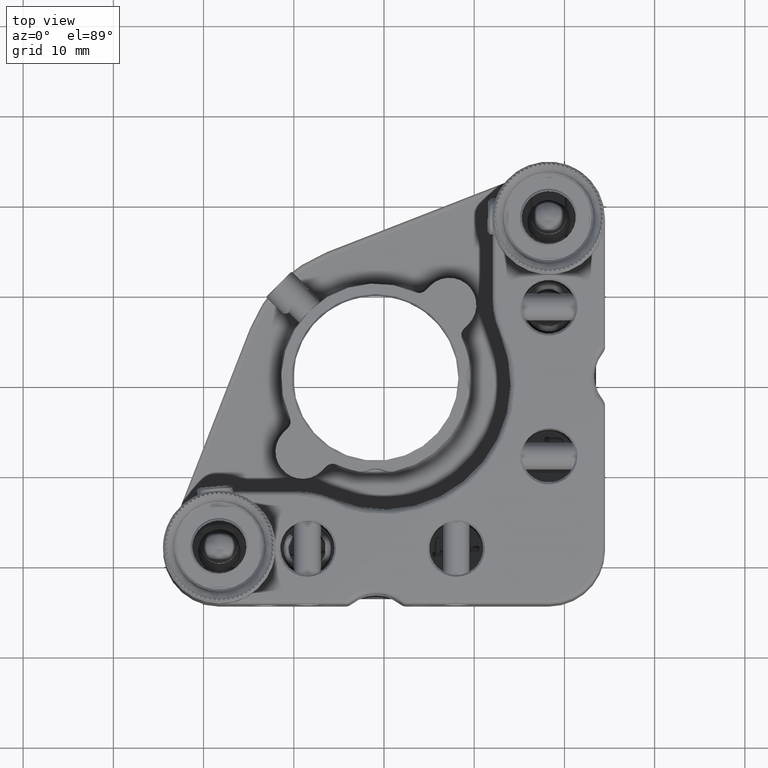
[diagram: clean part render]
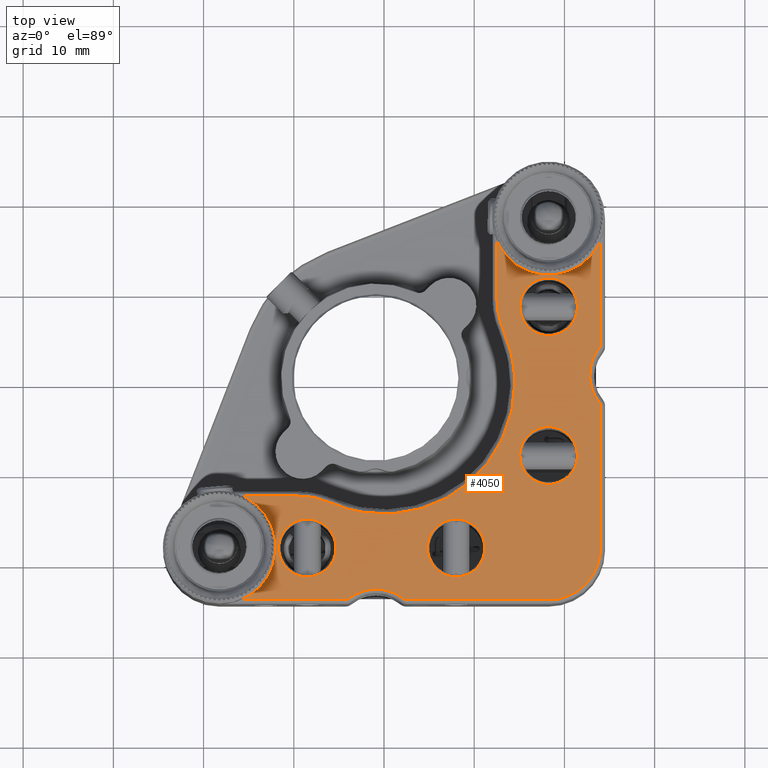
[diagram: same view with one face highlighted and labeled with its STEP entity id]
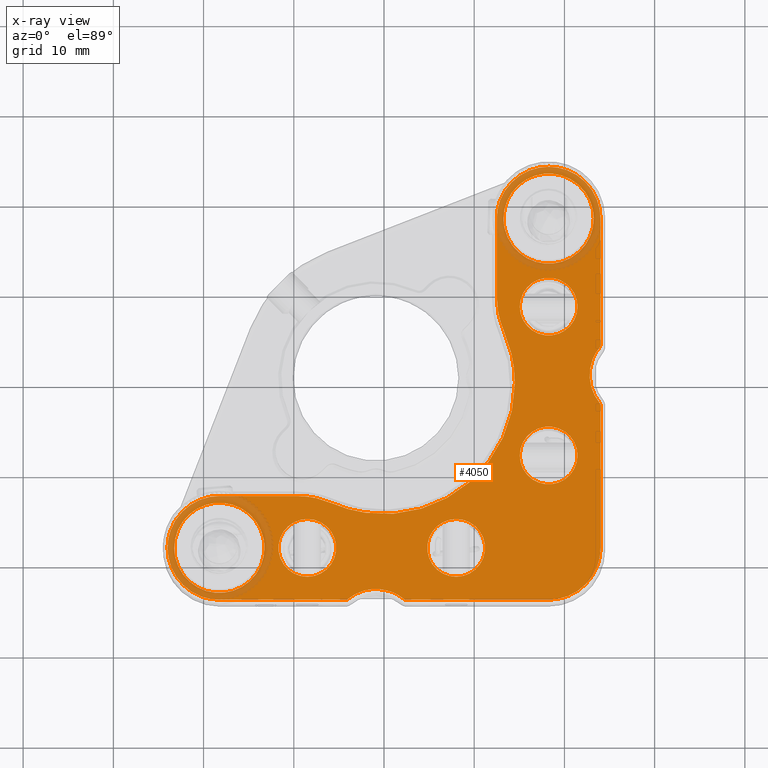
[diagram: x-ray of the same camera — body ghosted, the highlighted face saturated]
A machine part, top view. The second image highlights one B-rep face of the part: STEP entity #4050.
The next image is the same camera in x-ray: the body ghosted, the highlighted face saturated — about 9% of this face is hidden behind the body in this view.
In plain terms, the highlighted planar face has unit normal (0, 0, 1).
Its self-contained STEP definition (entity closure, byte-faithful):
#3 = CARTESIAN_POINT ( 'NONE',  ( 15.43466648715832790, 23.26461548262636470, 7.500000000000000888 ) ) ;
#106 = CARTESIAN_POINT ( 'NONE',  ( 12.50000000000000533, 0.000000000000000000, 7.500000000000000000 ) ) ;
#143 = B_SPLINE_CURVE_WITH_KNOTS ( 'NONE', 3,
 ( #9153, #42897, #39534, #16077 ),
 .UNSPECIFIED., .F., .F.,
 ( 4, 4 ),
 ( 0.000000000000000000, 1.000000000000000000 ),
 .UNSPECIFIED. ) ;
#165 = CARTESIAN_POINT ( 'NONE',  ( -16.42914466848321453, -13.59329416502704646, 7.500000000000000888 ) ) ;
#221 = CARTESIAN_POINT ( 'NONE',  ( -2.150072088218283550, -14.34008433834718588, 7.500000000000002665 ) ) ;
#269 = CARTESIAN_POINT ( 'NONE',  ( -22.84573289336449875, -21.72842656678299988, 7.499999999999999112 ) ) ;
#321 = CARTESIAN_POINT ( 'NONE',  ( 20.84478177673194921, 13.97264362091292789, 7.500000000000000888 ) ) ;
#387 = CARTESIAN_POINT ( 'NONE',  ( -13.34883824008518616, -17.26055234076761735, 7.499999999999999112 ) ) ;
#485 = CARTESIAN_POINT ( 'NONE',  ( -23.70887726416833985, -20.06071484521662285, 7.500000000000000888 ) ) ;
#533 = CARTESIAN_POINT ( 'NONE',  ( -13.57237500439921973, -20.01644682102760697, 7.499999999999997335 ) ) ;
#538 = CARTESIAN_POINT ( 'NONE',  ( 17.46391052911314290, 13.29382333332849164, 7.500000000000002665 ) ) ;
#591 = CARTESIAN_POINT ( 'NONE',  ( 24.00000000000000000, -2.362119274996246521, 7.500000000000000000 ) ) ;
#604 = CARTESIAN_POINT ( 'NONE',  ( -15.58610963810087569, -14.01785779705564750, 7.500000000000000000 ) ) ;
#619 = CARTESIAN_POINT ( 'NONE',  ( 20.19332647193107988, 23.66487619370220585, 7.500000000000000888 ) ) ;
#660 = CARTESIAN_POINT ( 'NONE',  ( 12.59999388708823709, 19.31789061972977706, 7.500000000000000888 ) ) ;
#700 = CARTESIAN_POINT ( 'NONE',  ( -23.61414371047678529, -20.32141682530319926, 7.500000000000000888 ) ) ;
#749 = CARTESIAN_POINT ( 'NONE',  ( 20.22719985741939297, 13.65719610069775314, 7.500000000000001776 ) ) ;
#822 = CARTESIAN_POINT ( 'NONE',  ( -20.16879026320557955, -13.63278435720719273, 7.500000000000002665 ) ) ;
#840 = CARTESIAN_POINT ( 'NONE',  ( 20.45666965764849365, 23.55993888649539159, 7.500000000000000000 ) ) ;
#965 = CARTESIAN_POINT ( 'NONE',  ( -21.54168244731702586, -22.02933284677875747, 7.500000000000000888 ) ) ;
#1082 = CARTESIAN_POINT ( 'NONE',  ( 16.39106327275688457, 22.89162989535999415, 7.500000000000002665 ) ) ;
#1189 = CARTESIAN_POINT ( 'NONE',  ( -3.420401920073745661, -23.49064185938485849, 7.500000000000000000 ) ) ;
#1305 = CARTESIAN_POINT ( 'NONE',  ( 13.88945034874126527, 20.69808808539364264, 7.499999999999997335 ) ) ;
#1313 = VERTEX_POINT ( 'NONE', #18527 ) ;
#1441 = CARTESIAN_POINT ( 'NONE',  ( 19.25302619910712565, -23.91188038700348883, 7.500000000000001776 ) ) ;
#1478 = VERTEX_POINT ( 'NONE', #14718 ) ;
#1520 = CARTESIAN_POINT ( 'NONE',  ( 22.95858165592568767, 19.93987103899983282, 7.500000000000000888 ) ) ;
#1629 = CARTESIAN_POINT ( 'NONE',  ( -16.39106327275742103, -22.89162989535998705, 7.499999999999998224 ) ) ;
#1664 = DIRECTION ( 'NONE',  ( -0.000000000000000000, 1.000000000000000000, 0.000000000000000000 ) ) ;
#1800 = CARTESIAN_POINT ( 'NONE',  ( -19.34213081270693735, -23.89537543401070252, 7.500000000000000888 ) ) ;
#1827 = EDGE_CURVE ( 'NONE', #22977, #24661, #42489, .T. ) ;
#1839 = CARTESIAN_POINT ( 'NONE',  ( -2.031911636835606494, -22.89904173211784411, 7.500000000000000888 ) ) ;
#1842 = CARTESIAN_POINT ( 'NONE',  ( -15.37077416375772287, -22.33871142856425251, 7.500000000000004441 ) ) ;
#1852 = VERTEX_POINT ( 'NONE', #22689 ) ;
#1871 = CARTESIAN_POINT ( 'NONE',  ( 23.66487619370129991, -20.19332647193181174, 7.500000000000000000 ) ) ;
#1947 = EDGE_CURVE ( 'NONE', #4638, #1852, #20136, .T. ) ;
#1954 = CARTESIAN_POINT ( 'NONE',  ( 22.83431388198553691, 20.24648232653875368, 7.499999999999997335 ) ) ;
#2053 = CARTESIAN_POINT ( 'NONE',  ( 0.2949193568978997204, -22.94533554474465120, 7.499999999999999112 ) ) ;
#2060 = CARTESIAN_POINT ( 'NONE',  ( -20.27961669613871365, -12.86991583434876141, 7.499999999999999112 ) ) ;
#2280 = CARTESIAN_POINT ( 'NONE',  ( -19.75066606695970250, -12.69375617033863968, 7.499999999999998224 ) ) ;
#2298 = DIRECTION ( 'NONE',  ( 1.000000000000000000, 0.000000000000000000, 0.000000000000000000 ) ) ;
#2323 = VERTEX_POINT ( 'NONE', #14797 ) ;
#2332 = FACE_BOUND ( 'NONE', #41440, .T. ) ;
#2392 = CARTESIAN_POINT ( 'NONE',  ( 23.13902096687312238, 19.29898709126281986, 7.500000000000000888 ) ) ;
#2499 = CARTESIAN_POINT ( 'NONE',  ( 0.7392664827717601028, -23.08530818949608943, 7.499999999999999112 ) ) ;
#2534 = CARTESIAN_POINT ( 'NONE',  ( 23.03616225444038079, -21.43707619765823935, 7.500000000000000000 ) ) ;
#2733 = CARTESIAN_POINT ( 'NONE',  ( -23.96800195613176498, -17.54936154239042168, 7.499999999999999112 ) ) ;
#2793 = CARTESIAN_POINT ( 'NONE',  ( -8.499999999999992895, -21.44999999999256346, 7.499999999962717823 ) ) ;
#2829 = EDGE_LOOP ( 'NONE', ( #5303, #6415 ) ) ;
#2870 = CARTESIAN_POINT ( 'NONE',  ( 23.99999999999999289, 18.25000000000000355, 7.500000000000000000 ) ) ;
#2907 = CARTESIAN_POINT ( 'NONE',  ( 12.46568319734542563, -7.431743416717483619, 7.500000000000001776 ) ) ;
#2976 = CARTESIAN_POINT ( 'NONE',  ( 23.04936787048795210, 2.435694983449248952, 7.500000000000000000 ) ) ;
#3094 = CARTESIAN_POINT ( 'NONE',  ( 22.59627458184625226, 22.03540087693756178, 7.500000000000000000 ) ) ;
#3130 = CARTESIAN_POINT ( 'NONE',  ( 11.98303924001180576, -8.204789043700268181, 7.500000000000000888 ) ) ;
#3135 = CARTESIAN_POINT ( 'NONE',  ( 15.26744412102346971, 23.16694780596479575, 7.500000000000000888 ) ) ;
#3163 = EDGE_LOOP ( 'NONE', ( #38178 ) ) ;
#3169 = CARTESIAN_POINT ( 'NONE',  ( 14.47066715320836749, 21.54168244730747261, 7.500000000000001776 ) ) ;
#3230 = CARTESIAN_POINT ( 'NONE',  ( 22.61054965125870098, 15.80191191460624367, 7.500000000000000000 ) ) ;
#3302 = CARTESIAN_POINT ( 'NONE',  ( -13.66568611801731592, -16.25351767345568277, 7.499999999999998224 ) ) ;
#3356 = CARTESIAN_POINT ( 'NONE',  ( 3.626274238520084570, -14.09237836116049181, 7.499999999999999112 ) ) ;
#3361 = CARTESIAN_POINT ( 'NONE',  ( 12.50000000000000533, 18.60187594048745652, 7.500000000000000000 ) ) ;
#3405 = DIRECTION ( 'NONE',  ( -0.000000000000000000, 1.000000000000000000, 0.000000000000000000 ) ) ;
#3451 = CARTESIAN_POINT ( 'NONE',  ( 21.47227419030121709, 14.41991561149695578, 7.500000000000003553 ) ) ;
#3526 = CARTESIAN_POINT ( 'NONE',  ( -14.16128857143291775, -15.37077416376127026, 7.500000000000000888 ) ) ;
#3581 = VECTOR ( 'NONE', #3405, 1000.000000000000000 ) ;
#3670 = CARTESIAN_POINT ( 'NONE',  ( 14.59254036475654104, 14.83636556449481070, 7.500000000000000000 ) ) ;
#3742 = CARTESIAN_POINT ( 'NONE',  ( -16.66951769155523522, -13.50504013444960627, 7.500000000000000888 ) ) ;
#3794 = CARTESIAN_POINT ( 'NONE',  ( 5.745013105943811205, -13.31933445024760587, 7.500000000000000888 ) ) ;
#3799 = CARTESIAN_POINT ( 'NONE',  ( 17.02051451319136177, 23.87012207035250100, 7.500000000000000888 ) ) ;
#3829 = CARTESIAN_POINT ( 'NONE',  ( 13.29166666666666785, 5.794963090669535966, 7.500000000000000000 ) ) ;
#3834 = ORIENTED_EDGE ( 'NONE', *, *, #28044, .T. ) ;
#3864 = CARTESIAN_POINT ( 'NONE',  ( 23.07257300078561002, 2.503432452232427607, 7.500000000000001776 ) ) ;
#3891 = CARTESIAN_POINT ( 'NONE',  ( -13.76775460359442427, -20.47707547829998020, 7.500000000000003553 ) ) ;
#3896 = CARTESIAN_POINT ( 'NONE',  ( 15.65649097499819931, 13.97438401740281932, 7.500000000000001776 ) ) ;
#3986 = CARTESIAN_POINT ( 'NONE',  ( 19.92963076231743358, 23.75478668280792149, 7.499999999999999112 ) ) ;
#4025 = CARTESIAN_POINT ( 'NONE',  ( 13.54845934881190850, 21.56068425326269988, 7.500000000000000000 ) ) ;
#4050 = ADVANCED_FACE ( 'NONE', ( #40342, #5704, #37208, #23148, #36544, #36326, #2332 ), #13323, .T. ) ;
#4120 = CARTESIAN_POINT ( 'NONE',  ( 16.02292452170118509, 13.76775460359416670, 7.500000000000001776 ) ) ;
#4186 = CARTESIAN_POINT ( 'NONE',  ( -15.65649097500006626, -13.97438401740141956, 7.499999999999999112 ) ) ;
#4211 = VERTEX_POINT ( 'NONE', #43705 ) ;
#4285 = CARTESIAN_POINT ( 'NONE',  ( -20.54593491148623485, -23.52197116844309832, 7.500000000000000888 ) ) ;
#4289 = ORIENTED_EDGE ( 'NONE', *, *, #29490, .T. ) ;
#4329 = CARTESIAN_POINT ( 'NONE',  ( -17.00034819405334829, -23.13291302378115688, 7.500000000000000888 ) ) ;
#4442 = CARTESIAN_POINT ( 'NONE',  ( 13.50506593754665019, 19.83054750541200661, 7.500000000000000000 ) ) ;
#4508 = CARTESIAN_POINT ( 'NONE',  ( -23.91188038700349239, -19.25302619910683433, 7.499999999999997335 ) ) ;
#4555 = CARTESIAN_POINT ( 'NONE',  ( -15.23185261421918035, -22.23731338067906904, 7.500000000000001776 ) ) ;
#4638 = VERTEX_POINT ( 'NONE', #11900 ) ;
#4776 = ORIENTED_EDGE ( 'NONE', *, *, #11537, .T. ) ;
#4781 = CARTESIAN_POINT ( 'NONE',  ( -16.27280014257323870, -22.84280389929820032, 7.499999999999999112 ) ) ;
#4783 = VERTEX_POINT ( 'NONE', #35563 ) ;
#4842 = EDGE_CURVE ( 'NONE', #33234, #33234, #35527, .T. ) ;
#4963 = CARTESIAN_POINT ( 'NONE',  ( -20.40984910699096488, -23.57913436546157016, 7.500000000000000888 ) ) ;
#5001 = CARTESIAN_POINT ( 'NONE',  ( -20.47707547829869767, -22.73224539640688846, 7.500000000000001776 ) ) ;
#5106 = CARTESIAN_POINT ( 'NONE',  ( 22.65463598998705663, 20.62688463169240904, 7.500000000000003553 ) ) ;
#5171 = CARTESIAN_POINT ( 'NONE',  ( -18.60187594050384874, -24.00000000000000000, 7.500000000000001776 ) ) ;
#5213 = CARTESIAN_POINT ( 'NONE',  ( -16.37027439668271001, -22.88325495879531601, 7.499999999999998224 ) ) ;
#5303 = ORIENTED_EDGE ( 'NONE', *, *, #33143, .T. ) ;
#5330 = CARTESIAN_POINT ( 'NONE',  ( 20.84350902500829861, 22.52561598259343256, 7.499999999999999112 ) ) ;
#5438 = CARTESIAN_POINT ( 'NONE',  ( -20.19223677192156785, -12.83774596776018662, 7.500000000000001776 ) ) ;
#5557 = CARTESIAN_POINT ( 'NONE',  ( -22.48214220294437027, -15.58610963810048133, 7.500000000000000000 ) ) ;
#5605 = CARTESIAN_POINT ( 'NONE',  ( -20.19332647193997587, -23.66487619369856432, 7.500000000000001776 ) ) ;
#5613 = CARTESIAN_POINT ( 'NONE',  ( 10.66339508570131400, -9.825646921076984341, 7.500000000000000000 ) ) ;
#5656 = CARTESIAN_POINT ( 'NONE',  ( -22.65462674205740967, -14.54442126318056161, 7.500000000000000000 ) ) ;
#5704 = FACE_BOUND ( 'NONE', #2829, .T. ) ;
#5707 = B_SPLINE_CURVE_WITH_KNOTS ( 'NONE', 3,
 ( #33684, #40419, #43777, #44003, #23001, #26569, #13175, #13403, #6441, #9832, #20098, #36398, #16750, #5557, #30364, #19210, #12517, #22788, #10719, #40636, #24546, #41317, #21200, #41087, #30582, #822, #13838, #27450, #17855, #14508, #10046, #27686, #7551, #3742, #23653, #34137, #31025, #165, #37288, #34805, #38185, #4186, #604, #6890, #24325, #20319, #10933, #6658, #3526, #31239, #10493, #33914, #27226, #3302, #16981, #13616, #44222, #14289, #27902, #40856, #387, #10271, #37961, #31455, #24104, #23877 ),
 .UNSPECIFIED., .F., .F.,
 ( 4, 1, 1, 1, 1, 2, 2, 1, 2, 2, 2, 1, 2, 2, 1, 1, 1, 2, 2, 2, 1, 1, 1, 1, 2, 2, 1, 2, 2, 2, 1, 2, 2, 1, 1, 2, 2, 1, 1, 1, 2, 2, 4 ),
 ( 0.000000000000000000, 0.06249999999999342193, 0.09374999999999007738, 0.1093749999999886341, 0.1171874999999883565, 0.1210937499999882178, 0.1249999999999880651, 0.1562499999999857336, 0.1718749999999847344, 0.1874999999999837352, 0.2499999999999790168, 0.2812499999999765743, 0.2968749999999752975, 0.3124999999999740763, 0.3437499999999720224, 0.3593749999999712452, 0.3671874999999705791, 0.3710937499999705236, 0.3749999999999705236, 0.4999999999999724665, 0.5624999999999737987, 0.5937499999999744649, 0.6093749999999747979, 0.6171874999999750200, 0.6210937499999753530, 0.6249999999999756861, 0.6562499999999780176, 0.6718749999999787947, 0.6874999999999795719, 0.7499999999999830136, 0.7812499999999846789, 0.7968749999999857891, 0.8124999999999867883, 0.8437499999999894529, 0.8593749999999910072, 0.8671874999999917843, 0.8749999999999924505, 0.9062499999999940048, 0.9218749999999946709, 0.9296874999999951150, 0.9335937499999952260, 0.9374999999999953371, 1.000000000000000000 ),
 .UNSPECIFIED. ) ;
#5765 = CARTESIAN_POINT ( 'NONE',  ( 23.22217561402763408, 18.85927399680137739, 7.500000000000001776 ) ) ;
#5836 = CARTESIAN_POINT ( 'NONE',  ( 10.74150261984039467, -9.740213609948334295, 7.499999999999999112 ) ) ;
#5867 = CARTESIAN_POINT ( 'NONE',  ( -0.6128827754583842102, -22.79996896703577747, 7.500000000000003553 ) ) ;
#5876 = CARTESIAN_POINT ( 'NONE',  ( -23.66487619370145978, -16.30667352806639769, 7.499999999999999112 ) ) ;
#5960 = CARTESIAN_POINT ( 'NONE',  ( -6.393626233271056947, -13.03065870565450091, 7.500000000000000888 ) ) ;
#6102 = CARTESIAN_POINT ( 'NONE',  ( -19.47948548680611225, -12.62987792964650069, 7.499999999999999112 ) ) ;
#6110 = VERTEX_POINT ( 'NONE', #30455 ) ;
#6281 = CARTESIAN_POINT ( 'NONE',  ( 14.08013779601283133, -3.464266110424429002, 7.499999999999999112 ) ) ;
#6322 = CARTESIAN_POINT ( 'NONE',  ( -23.88633938385301292, -17.11214681806968230, 7.499999999999999112 ) ) ;
#6347 = CARTESIAN_POINT ( 'NONE',  ( 23.00787092930922739, -21.47918091870441870, 7.500000000000002665 ) ) ;
#6355 = DIRECTION ( 'NONE',  ( -1.000000000000000000, -0.000000000000000000, 0.000000000000000000 ) ) ;
#6374 = CARTESIAN_POINT ( 'NONE',  ( 22.90670583497308854, 16.42914466848345612, 7.499999999999999112 ) ) ;
#6415 = ORIENTED_EDGE ( 'NONE', *, *, #19442, .T. ) ;
#6441 = CARTESIAN_POINT ( 'NONE',  ( -22.90670583497296064, -16.42914466848334243, 7.499999999999998224 ) ) ;
#6500 = CARTESIAN_POINT ( 'NONE',  ( 16.30776322807630763, 23.66225403223897672, 7.500000000000000000 ) ) ;
#6530 = CARTESIAN_POINT ( 'NONE',  ( 13.57237500439923039, 20.01644682102722328, 7.499999999999999112 ) ) ;
#6658 = CARTESIAN_POINT ( 'NONE',  ( -14.26268661931648651, -15.23185261422476877, 7.500000000000000000 ) ) ;
#6714 = CARTESIAN_POINT ( 'NONE',  ( -0.2984867534326592908, -14.51973478880496238, 7.499999999999999112 ) ) ;
#6755 = CARTESIAN_POINT ( 'NONE',  ( 13.42187238802427096, 19.56819964873136541, 7.500000000000000888 ) ) ;
#6771 = LINE ( 'NONE', #7214, #3581 ) ;
#6816 = CARTESIAN_POINT ( 'NONE',  ( 17.93226841290818285, 13.24996629799572290, 7.500000000000000000 ) ) ;
#6890 = CARTESIAN_POINT ( 'NONE',  ( -15.22531761296792219, -14.25368103131111575, 7.500000000000001776 ) ) ;
#6905 = CARTESIAN_POINT ( 'NONE',  ( 23.52483881362998375, 20.54705559870481579, 7.499999999999997335 ) ) ;
#6986 = CARTESIAN_POINT ( 'NONE',  ( -23.52483881363779616, -20.54705559869102771, 7.500000000000000888 ) ) ;
#7011 = CARTESIAN_POINT ( 'NONE',  ( 23.27687480002944298, -1.205353958562445094, 7.500000000000000888 ) ) ;
#7086 = EDGE_CURVE ( 'NONE', #6110, #31507, #6771, .T. ) ;
#7198 = CARTESIAN_POINT ( 'NONE',  ( 15.02772580969469196, 22.08008438849991961, 7.500000000000000888 ) ) ;
#7207 = CARTESIAN_POINT ( 'NONE',  ( -22.17565869681648749, -22.45609554926017637, 7.499999999999998224 ) ) ;
#7214 = CARTESIAN_POINT ( 'NONE',  ( 24.00000000000000000, 0.000000000000000000, 7.500000000000000000 ) ) ;
#7262 = CARTESIAN_POINT ( 'NONE',  ( 20.62688463169708797, 13.84536401001520289, 7.500000000000000888 ) ) ;
#7342 = CARTESIAN_POINT ( 'NONE',  ( 13.29166666666666785, 5.794963090669535966, 7.500000000000000000 ) ) ;
#7353 = CARTESIAN_POINT ( 'NONE',  ( 18.95063845760679300, 23.96800195613176854, 7.500000000000000000 ) ) ;
#7390 = CARTESIAN_POINT ( 'NONE',  ( 15.68882219950744350, 23.40456105782275031, 7.500000000000000000 ) ) ;
#7455 = CARTESIAN_POINT ( 'NONE',  ( 23.10930734072223203, -0.8046588411678450292, 7.500000000000000888 ) ) ;
#7485 = CARTESIAN_POINT ( 'NONE',  ( 14.26268661931979231, 15.23185261422071690, 7.500000000000000000 ) ) ;
#7551 = CARTESIAN_POINT ( 'NONE',  ( -16.93191211749821434, -13.42182815414363262, 7.500000000000001776 ) ) ;
#7602 = CARTESIAN_POINT ( 'NONE',  ( 6.681891451917344682, -12.89276205534356734, 7.500000000000002665 ) ) ;
#7649 = CARTESIAN_POINT ( 'NONE',  ( -21.68171775292571368, -22.86556821607583245, 7.500000000000001776 ) ) ;
#7702 = CARTESIAN_POINT ( 'NONE',  ( 16.25258072184784197, 13.66317313197582628, 7.500000000000001776 ) ) ;
#7870 = CARTESIAN_POINT ( 'NONE',  ( -23.99999999999999289, -18.24999999999999645, 7.500000000000000000 ) ) ;
#7918 = CARTESIAN_POINT ( 'NONE',  ( -22.95858165592641953, -19.93987103900261815, 7.500000000000002665 ) ) ;
#7977 = CARTESIAN_POINT ( 'NONE',  ( -5.794963090669551953, -13.29166666666666430, 7.500000000000000000 ) ) ;
#8049 = CARTESIAN_POINT ( 'NONE',  ( 14.50000000000000178, 0.000000000000000000, 7.500000000000000000 ) ) ;
#8139 = CARTESIAN_POINT ( 'NONE',  ( -15.87311536828607217, -22.65463598997553873, 7.499999999999999112 ) ) ;
#8252 = CARTESIAN_POINT ( 'NONE',  ( 20.01642636381732387, 22.92763309198096167, 7.500000000000001776 ) ) ;
#8314 = CARTESIAN_POINT ( 'NONE',  ( -19.38785318193324514, -23.88633938385168065, 7.499999999999999112 ) ) ;
#8333 = ORIENTED_EDGE ( 'NONE', *, *, #9499, .T. ) ;
#8361 = CARTESIAN_POINT ( 'NONE',  ( -22.88403146765857699, -20.12812417501103823, 7.499999999999998224 ) ) ;
#8480 = CARTESIAN_POINT ( 'NONE',  ( 20.05348214134791007, 22.91345881266351725, 7.500000000000002665 ) ) ;
#8583 = CARTESIAN_POINT ( 'NONE',  ( -20.01642636381512119, -22.92763309198095811, 7.500000000000000888 ) ) ;
#8615 = CARTESIAN_POINT ( 'NONE',  ( 18.42576019999216896, -23.99999999999999645, 7.500000000000001776 ) ) ;
#8694 = CARTESIAN_POINT ( 'NONE',  ( 21.90745963524435069, 21.66363443550600110, 7.500000000000000888 ) ) ;
#8806 = CARTESIAN_POINT ( 'NONE',  ( 1.741479516943689410, -23.54666538232909900, 7.500000000000000888 ) ) ;
#8839 = CARTESIAN_POINT ( 'NONE',  ( 23.83696777005783218, -19.61521580957574074, 7.500000000000000888 ) ) ;
#8943 = DIRECTION ( 'NONE',  ( 1.000000000000000000, 0.000000000000000000, -0.000000000000000000 ) ) ;
#9037 = CARTESIAN_POINT ( 'NONE',  ( -18.68836629389590342, -12.51199926645058724, 7.500000000000000000 ) ) ;
#9064 = CARTESIAN_POINT ( 'NONE',  ( 21.31346346075872589, -23.11697201354319731, 7.500000000000000888 ) ) ;
#9146 = CARTESIAN_POINT ( 'NONE',  ( 20.07085533151560597, 22.90670583497369250, 7.500000000000002665 ) ) ;
#9153 = CARTESIAN_POINT ( 'NONE',  ( 23.88785046728972006, 3.960838266476649494, 7.500000000000000000 ) ) ;
#9361 = ORIENTED_EDGE ( 'NONE', *, *, #17877, .T. ) ;
#9383 = ORIENTED_EDGE ( 'NONE', *, *, #29085, .T. ) ;
#9405 = CARTESIAN_POINT ( 'NONE',  ( 23.90824134315061045, 19.27338780943995644, 7.500000000000002665 ) ) ;
#9483 = CARTESIAN_POINT ( 'NONE',  ( -23.83696777005804179, -16.88478419042190382, 7.500000000000000888 ) ) ;
#9499 = EDGE_CURVE ( 'NONE', #41733, #41733, #36212, .T. ) ;
#9644 = VERTEX_POINT ( 'NONE', #14421 ) ;
#9673 = CARTESIAN_POINT ( 'NONE',  ( 14.50000000000000178, 0.000000000000000000, 7.500000000000000000 ) ) ;
#9710 = CARTESIAN_POINT ( 'NONE',  ( -23.75478668280662475, -16.57036923767814329, 7.500000000000003553 ) ) ;
#9765 = CARTESIAN_POINT ( 'NONE',  ( 22.92762499560078027, 16.48355317897277672, 7.499999999999997335 ) ) ;
#9806 = VERTEX_POINT ( 'NONE', #32678 ) ;
#9810 = CARTESIAN_POINT ( 'NONE',  ( -13.24999999999999822, -18.24999999999999645, 7.500000000000000000 ) ) ;
#9832 = CARTESIAN_POINT ( 'NONE',  ( -22.83682686802563211, -16.25258072184893621, 7.500000000000000888 ) ) ;
#9836 = CARTESIAN_POINT ( 'NONE',  ( 0.000000000000000000, -23.99999999999999645, 7.500000000000000000 ) ) ;
#9851 = CARTESIAN_POINT ( 'NONE',  ( 23.11697201354532183, 21.31346346075723730, 7.499999999999999112 ) ) ;
#9952 = CARTESIAN_POINT ( 'NONE',  ( 22.79996896703577036, 1.187117224544024907, 7.500000000000000888 ) ) ;
#9970 = CARTESIAN_POINT ( 'NONE',  ( 18.25000000000001421, 8.500000000000000000, 7.499999999969999109 ) ) ;
#10046 = CARTESIAN_POINT ( 'NONE',  ( -17.93226841291165030, -13.24996629799571934, 7.500000000000000888 ) ) ;
#10068 = CARTESIAN_POINT ( 'NONE',  ( 21.23397561919463783, 23.16897192977221209, 7.499999999999998224 ) ) ;
#10103 = CARTESIAN_POINT ( 'NONE',  ( 4.919658114939224447, -13.63995901187740856, 7.500000000000000888 ) ) ;
#10107 = CARTESIAN_POINT ( 'NONE',  ( 12.50000000000000355, 18.25000000000000355, 7.500000000000000000 ) ) ;
#10140 = CARTESIAN_POINT ( 'NONE',  ( 18.56773158709566829, 23.25003370200532160, 7.500000000000000000 ) ) ;
#10201 = CARTESIAN_POINT ( 'NONE',  ( 22.24631896868768166, 15.22531761296673736, 7.500000000000001776 ) ) ;
#10271 = CARTESIAN_POINT ( 'NONE',  ( -13.34097941859701919, -17.30031572053922062, 7.499999999999999112 ) ) ;
#10330 = CARTESIAN_POINT ( 'NONE',  ( 15.18653653924329738, 23.11697201354570552, 7.500000000000000888 ) ) ;
#10362 = CARTESIAN_POINT ( 'NONE',  ( 15.44331773797724594, 22.38878814459611633, 7.500000000000001776 ) ) ;
#10367 = VERTEX_POINT ( 'NONE', #22816 ) ;
#10493 = CARTESIAN_POINT ( 'NONE',  ( -13.97264362091503997, -15.65521822326412149, 7.500000000000000888 ) ) ;
#10552 = CARTESIAN_POINT ( 'NONE',  ( 18.25000000000000355, 24.00000000000000355, 7.500000000000000000 ) ) ;
#10586 = CARTESIAN_POINT ( 'NONE',  ( 13.97438401740230418, 20.84350902500150227, 7.500000000000000888 ) ) ;
#10619 = CARTESIAN_POINT ( 'NONE',  ( 23.49064185938185645, -1.620401920070066115, 7.499999999999998224 ) ) ;
#10643 = CARTESIAN_POINT ( 'NONE',  ( -13.55146234016489259, -19.96081325339675416, 7.499999999999999112 ) ) ;
#10647 = CARTESIAN_POINT ( 'NONE',  ( 21.66363443550094203, 14.59254036475284266, 7.500000000000000888 ) ) ;
#10719 = CARTESIAN_POINT ( 'NONE',  ( -21.26814738578000075, -14.26268661932012094, 7.500000000000000888 ) ) ;
#10809 = CARTESIAN_POINT ( 'NONE',  ( -23.66225403223939239, -20.19223677191893529, 7.500000000000002665 ) ) ;
#10854 = CARTESIAN_POINT ( 'NONE',  ( -14.47066715321439645, -21.54168244731295090, 7.499999999999998224 ) ) ;
#10862 = CARTESIAN_POINT ( 'NONE',  ( 13.36097903312630919, 17.20101290873770949, 7.500000000000000888 ) ) ;
#10933 = CARTESIAN_POINT ( 'NONE',  ( -14.41991561149923307, -15.02772580969651095, 7.500000000000002665 ) ) ;
#10984 = CARTESIAN_POINT ( 'NONE',  ( 4.849987751334311703, -13.66488115082005983, 7.500000000000000888 ) ) ;
#11027 = CARTESIAN_POINT ( 'NONE',  ( -21.95557873682961514, -22.65462674204889382, 7.500000000000000000 ) ) ;
#11070 = CARTESIAN_POINT ( 'NONE',  ( -3.751293956912753469, -23.71736781218548629, 7.500000000000000888 ) ) ;
#11085 = CARTESIAN_POINT ( 'NONE',  ( 14.16128857143502451, 15.37077416375869809, 7.500000000000000888 ) ) ;
#11128 = VECTOR ( 'NONE', #6355, 1000.000000000000000 ) ;
#11297 = CARTESIAN_POINT ( 'NONE',  ( -23.16304879383632809, -19.17859909114023864, 7.500000000000002665 ) ) ;
#11510 = CARTESIAN_POINT ( 'NONE',  ( -2.790578164845170406, -23.18267790841698073, 7.499999999999999112 ) ) ;
#11515 = CARTESIAN_POINT ( 'NONE',  ( -17.61453682582698832, -23.24993259598934969, 7.500000000000000000 ) ) ;
#11537 = EDGE_CURVE ( 'NONE', #9806, #36946, #37972, .T. ) ;
#11597 = ORIENTED_EDGE ( 'NONE', *, *, #39177, .T. ) ;
#11678 = CARTESIAN_POINT ( 'NONE',  ( 8.000000000000003553, -18.25000000000001421, 7.500000000011826984 ) ) ;
#11738 = CARTESIAN_POINT ( 'NONE',  ( -20.24741927815210474, -22.83682686802477235, 7.500000000000000000 ) ) ;
#11850 = CARTESIAN_POINT ( 'NONE',  ( 23.25000000000000355, 18.25000000000000355, 7.500000000000000000 ) ) ;
#11900 = CARTESIAN_POINT ( 'NONE',  ( 23.88785046728971651, -2.160838266476666103, 7.500000000000000000 ) ) ;
#11988 = CARTESIAN_POINT ( 'NONE',  ( 19.47948548681056025, -23.87012207035136058, 7.499999999999998224 ) ) ;
#12068 = CARTESIAN_POINT ( 'NONE',  ( 23.15116175991411396, 19.23944765923326372, 7.500000000000000888 ) ) ;
#12172 = CARTESIAN_POINT ( 'NONE',  ( -21.27468238702140724, -22.24631896869508552, 7.500000000000001776 ) ) ;
#12177 = CARTESIAN_POINT ( 'NONE',  ( -23.87237969284094063, -17.04368415634297307, 7.500000000000000888 ) ) ;
#12205 = CARTESIAN_POINT ( 'NONE',  ( 23.55993888649658885, -20.45666965764626966, 7.500000000000000000 ) ) ;
#12236 = DIRECTION ( 'NONE',  ( 1.000000000000000000, 0.000000000000000000, -0.000000000000000000 ) ) ;
#12386 = CARTESIAN_POINT ( 'NONE',  ( -1.474234449083219989, -22.80006206592845075, 7.500000000000000888 ) ) ;
#12395 = CARTESIAN_POINT ( 'NONE',  ( -22.45609554926503293, -14.32434130318931409, 7.499999999999998224 ) ) ;
#12504 = CARTESIAN_POINT ( 'NONE',  ( 22.23731338068142449, 21.26814738578038089, 7.500000000000000000 ) ) ;
#12517 = CARTESIAN_POINT ( 'NONE',  ( -21.66363443550571333, -14.59254036475678085, 7.500000000000001776 ) ) ;
#12576 = CARTESIAN_POINT ( 'NONE',  ( 14.10597504840190375, -3.357525788329407845, 7.499999999999999112 ) ) ;
#12614 = CARTESIAN_POINT ( 'NONE',  ( -23.03616225444126542, -15.06292380234345707, 7.500000000000000000 ) ) ;
#12639 = CARTESIAN_POINT ( 'NONE',  ( 23.46339571793417278, -20.67897296839323928, 7.499999999999999112 ) ) ;
#12693 = CARTESIAN_POINT ( 'NONE',  ( -8.938209356780610904, -12.49999999999999289, 7.500000000000000888 ) ) ;
#12859 = CARTESIAN_POINT ( 'NONE',  ( 22.65462674206491656, -21.95557873681026706, 7.500000000000000888 ) ) ;
#12889 = CARTESIAN_POINT ( 'NONE',  ( 23.07812761197574858, 16.93180035126864524, 7.499999999999999112 ) ) ;
#13024 = ORIENTED_EDGE ( 'NONE', *, *, #7086, .T. ) ;
#13050 = CARTESIAN_POINT ( 'NONE',  ( -21.72842656679471318, -13.65426710664528720, 7.499999999999998224 ) ) ;
#13074 = CARTESIAN_POINT ( 'NONE',  ( 23.96800195613177564, -18.95063845761465160, 7.499999999999999112 ) ) ;
#13103 = CARTESIAN_POINT ( 'NONE',  ( 23.25000000000000355, 18.25000000000000355, 7.500000000000000000 ) ) ;
#13175 = CARTESIAN_POINT ( 'NONE',  ( -22.92762499560077671, -16.48355317897341976, 7.500000000000000888 ) ) ;
#13196 = CARTESIAN_POINT ( 'NONE',  ( 23.91188038700350660, 19.25302619910561930, 7.500000000000001776 ) ) ;
#13206 = B_SPLINE_CURVE_WITH_KNOTS ( 'NONE', 3,
 ( #29576, #33347, #9037, #15744, #39421, #40295, #29146, #33124, #6102, #2280, #43217, #5438, #2060, #42785, #29358, #19304, #25785, #33563, #42994, #13050, #36491, #12395, #5656, #19091, #36941, #26007, #12614, #26225, #14941, #39859, #23319, #43653, #40073, #5876, #9710, #9483, #12177, #6322, #19977, #39638, #2733, #23098, #43437 ),
 .UNSPECIFIED., .F., .F.,
 ( 4, 1, 1, 1, 2, 2, 1, 1, 2, 2, 1, 2, 2, 2, 1, 1, 2, 2, 1, 1, 2, 2, 1, 1, 1, 2, 2, 4 ),
 ( 0.000000000000000000, 0.06250000000000301148, 0.09375000000000455191, 0.1093750000000053152, 0.1171875000000057038, 0.1250000000000060785, 0.1875000000000110190, 0.2187500000000129063, 0.2343750000000137668, 0.2500000000000145994, 0.3125000000000147105, 0.3437500000000145994, 0.3750000000000144884, 0.5000000000000121014, 0.5625000000000106581, 0.5937500000000099920, 0.6093750000000098810, 0.6250000000000098810, 0.6875000000000093259, 0.7187500000000095479, 0.7343750000000094369, 0.7500000000000092149, 0.8125000000000101030, 0.8437500000000109912, 0.8593750000000115463, 0.8671875000000113243, 0.8750000000000112133, 1.000000000000000000 ),
 .UNSPECIFIED. ) ;
#13323 = PLANE ( 'NONE',  #43853 ) ;
#13403 = CARTESIAN_POINT ( 'NONE',  ( -22.91345466573706702, -16.44650738056930805, 7.500000000000000000 ) ) ;
#13420 = CARTESIAN_POINT ( 'NONE',  ( 21.56068425326517257, 22.95154065118589060, 7.500000000000000888 ) ) ;
#13459 = CARTESIAN_POINT ( 'NONE',  ( 12.83512380629842298, 20.19332647193234820, 7.499999999999999112 ) ) ;
#13483 = CARTESIAN_POINT ( 'NONE',  ( -3.960838266476649938, -23.88785046728971651, 7.500000000000000000 ) ) ;
#13487 = CARTESIAN_POINT ( 'NONE',  ( 16.13782285872975919, 22.78337377807834940, 7.499999999999997335 ) ) ;
#13598 = DIRECTION ( 'NONE',  ( 0.000000000000000000, -1.000000000000000000, 2.710505431123781638E-16 ) ) ;
#13616 = CARTESIAN_POINT ( 'NONE',  ( -13.61596853234160598, -16.37187582498776806, 7.499999999999999112 ) ) ;
#13635 = CARTESIAN_POINT ( 'NONE',  ( 23.95300287306853093, 18.99293020950634769, 7.500000000000000888 ) ) ;
#13674 = CARTESIAN_POINT ( 'NONE',  ( 17.22661219056002935, 23.90824134315066019, 7.500000000000000888 ) ) ;
#13826 = CARTESIAN_POINT ( 'NONE',  ( 23.88785046728971651, -2.160838266476666103, 7.500000000000000000 ) ) ;
#13835 = ORIENTED_EDGE ( 'NONE', *, *, #1827, .T. ) ;
#13838 = CARTESIAN_POINT ( 'NONE',  ( -20.12972560331601812, -13.61674504120390061, 7.500000000000000888 ) ) ;
#13857 = CARTESIAN_POINT ( 'NONE',  ( 19.38785318192915597, 23.88633938385335753, 7.500000000000000888 ) ) ;
#13902 = CARTESIAN_POINT ( 'NONE',  ( 12.60462456598857983, 19.34213081270510415, 7.500000000000001776 ) ) ;
#13998 = CARTESIAN_POINT ( 'NONE',  ( 20.36217714127068135, 13.71662622192227232, 7.500000000000001776 ) ) ;
#14007 = LINE ( 'NONE', #106, #29363 ) ;
#14115 = VECTOR ( 'NONE', #1664, 1000.000000000000000 ) ;
#14121 = CARTESIAN_POINT ( 'NONE',  ( 14.77157343320399185, 22.84573289335341428, 7.500000000000000888 ) ) ;
#14159 = ORIENTED_EDGE ( 'NONE', *, *, #31429, .T. ) ;
#14166 = CARTESIAN_POINT ( 'NONE',  ( -21.47918091870960211, -23.00787092930492861, 7.500000000000001776 ) ) ;
#14203 = VERTEX_POINT ( 'NONE', #20966 ) ;
#14216 = CARTESIAN_POINT ( 'NONE',  ( -13.97438401740294367, -20.84350902500237979, 7.500000000000001776 ) ) ;
#14222 = CARTESIAN_POINT ( 'NONE',  ( 14.95831755268872421, 14.47066715321217067, 7.500000000000000000 ) ) ;
#14246 = EDGE_CURVE ( 'NONE', #4783, #4638, #28275, .T. ) ;
#14289 = CARTESIAN_POINT ( 'NONE',  ( -13.46324006401516016, -16.78941312832923671, 7.499999999999997335 ) ) ;
#14338 = CARTESIAN_POINT ( 'NONE',  ( 12.92086563453918835, 20.40984910699287980, 7.500000000000001776 ) ) ;
#14382 = CARTESIAN_POINT ( 'NONE',  ( -21.23397561919917109, -23.16897192977054232, 7.499999999999998224 ) ) ;
#14421 = CARTESIAN_POINT ( 'NONE',  ( 12.50000000000000178, 9.591663046625440003, 7.500000000000000000 ) ) ;
#14435 = CARTESIAN_POINT ( 'NONE',  ( 20.10893672724318648, 13.60837010464008046, 7.500000000000001776 ) ) ;
#14507 = VERTEX_POINT ( 'NONE', #40137 ) ;
#14508 = CARTESIAN_POINT ( 'NONE',  ( -18.88546317417668519, -13.25006740400856842, 7.500000000000000000 ) ) ;
#14524 = CARTESIAN_POINT ( 'NONE',  ( 19.31789061973002575, 23.90000611291177179, 7.500000000000000888 ) ) ;
#14555 = CARTESIAN_POINT ( 'NONE',  ( -2.377428067589684613, -14.30381656630131992, 7.500000000000000888 ) ) ;
#14651 = CARTESIAN_POINT ( 'NONE',  ( -22.52735637908151745, -20.84478177674166233, 7.499999999999999112 ) ) ;
#14658 = CARTESIAN_POINT ( 'NONE',  ( 16.44651785865258731, 13.58654118733662841, 7.500000000000000888 ) ) ;
#14688 = VERTEX_POINT ( 'NONE', #30734 ) ;
#14718 = CARTESIAN_POINT ( 'NONE',  ( 21.44999999999255635, -8.000000000000000000, 7.499999999969999109 ) ) ;
#14767 = CARTESIAN_POINT ( 'NONE',  ( 13.59329416502693455, 20.07085533151655810, 7.499999999999999112 ) ) ;
#14797 = CARTESIAN_POINT ( 'NONE',  ( 2.476388603226832519, -23.99999999999999645, 7.500000000000000000 ) ) ;
#14879 = CARTESIAN_POINT ( 'NONE',  ( -22.86733323262026474, -20.16885272841374643, 7.499999999999998224 ) ) ;
#14941 = CARTESIAN_POINT ( 'NONE',  ( -23.31535255266925688, -15.51662366562719519, 7.500000000000000888 ) ) ;
#15209 = CARTESIAN_POINT ( 'NONE',  ( 19.96077832645236683, 22.94855148292322156, 7.500000000000000000 ) ) ;
#15273 = CARTESIAN_POINT ( 'NONE',  ( -19.31789061972874322, -23.90000611291177535, 7.499999999999999112 ) ) ;
#15424 = CARTESIAN_POINT ( 'NONE',  ( 23.10822452411975192, 19.43717296926574889, 7.500000000000000888 ) ) ;
#15487 = CARTESIAN_POINT ( 'NONE',  ( -18.24999999999999645, -23.99999999999999289, 7.500000000000000000 ) ) ;
#15532 = CARTESIAN_POINT ( 'NONE',  ( -19.56808788249936271, -23.07817184585772097, 7.499999999999997335 ) ) ;
#15560 = CARTESIAN_POINT ( 'NONE',  ( 23.88633938385294897, -19.38785318192948637, 7.500000000000001776 ) ) ;
#15641 = CARTESIAN_POINT ( 'NONE',  ( 23.25000000000000355, 18.55600224278111909, 7.499999999999999112 ) ) ;
#15704 = CARTESIAN_POINT ( 'NONE',  ( 2.360769871937985265, -23.99999999999999645, 7.500000000000000000 ) ) ;
#15706 = B_SPLINE_CURVE_WITH_KNOTS ( 'NONE', 3,
 ( #32963, #25843, #32746, #16019 ),
 .UNSPECIFIED., .F., .F.,
 ( 4, 4 ),
 ( 0.000000000000000000, 1.000000000000000000 ),
 .UNSPECIFIED. ) ;
#15724 = EDGE_CURVE ( 'NONE', #1478, #1478, #24437, .T. ) ;
#15744 = CARTESIAN_POINT ( 'NONE',  ( -18.99293020950582189, -12.54699712693146907, 7.500000000000002665 ) ) ;
#15986 = CARTESIAN_POINT ( 'NONE',  ( 20.32141682530282623, -23.61414371047727556, 7.499999999999999112 ) ) ;
#16019 = CARTESIAN_POINT ( 'NONE',  ( -3.960838266476649938, -23.88785046728971651, 7.500000000000000000 ) ) ;
#16049 = EDGE_CURVE ( 'NONE', #14688, #36450, #24320, .T. ) ;
#16077 = CARTESIAN_POINT ( 'NONE',  ( 24.00000000000000000, 4.276388603226819463, 7.500000000000000000 ) ) ;
#16211 = CARTESIAN_POINT ( 'NONE',  ( 20.54705559869250209, -23.52483881363576401, 7.500000000000000000 ) ) ;
#16333 = CARTESIAN_POINT ( 'NONE',  ( 23.80624382966031050, 19.75066606696459104, 7.500000000000000000 ) ) ;
#16400 = VERTEX_POINT ( 'NONE', #9810 ) ;
#16461 = CARTESIAN_POINT ( 'NONE',  ( 22.94853765983511806, 16.53918674660391019, 7.499999999999999112 ) ) ;
#16548 = CARTESIAN_POINT ( 'NONE',  ( 23.98800073354941631, 18.68836629389661042, 7.500000000000000888 ) ) ;
#16584 = CARTESIAN_POINT ( 'NONE',  ( 10.99494174643155020, -9.455400219490607938, 7.499999999999999112 ) ) ;
#16650 = CARTESIAN_POINT ( 'NONE',  ( 22.83706303925136893, 1.611326121595547001, 7.499999999999997335 ) ) ;
#16750 = CARTESIAN_POINT ( 'NONE',  ( -22.52561598259845255, -15.65649097499915676, 7.500000000000000888 ) ) ;
#16806 = CARTESIAN_POINT ( 'NONE',  ( 14.13153568865090470, -3.249583852143758111, 7.500000000000001776 ) ) ;
#16809 = CARTESIAN_POINT ( 'NONE',  ( 16.74933393303588147, 23.80624382965961061, 7.499999999999999112 ) ) ;
#16841 = CARTESIAN_POINT ( 'NONE',  ( 15.23185261422334413, 22.23731338068284202, 7.500000000000001776 ) ) ;
#16877 = CARTESIAN_POINT ( 'NONE',  ( 23.71736781218377033, -1.951293956910659322, 7.500000000000000888 ) ) ;
#16892 = DIRECTION ( 'NONE',  ( 1.000000000000000000, 0.000000000000000000, 0.000000000000000000 ) ) ;
#16908 = CARTESIAN_POINT ( 'NONE',  ( 22.52561598259767806, 15.65649097499842846, 7.500000000000000888 ) ) ;
#16933 = CIRCLE ( 'NONE', #26886, 3.199999999992542143 ) ;
#16981 = CARTESIAN_POINT ( 'NONE',  ( -13.63266676737811522, -16.33114727158896073, 7.500000000000000000 ) ) ;
#16998 = CARTESIAN_POINT ( 'NONE',  ( 20.98337633436922189, 23.31535255267115403, 7.500000000000000888 ) ) ;
#17037 = CARTESIAN_POINT ( 'NONE',  ( 13.84537325793776574, 21.95557873681461913, 7.500000000000002665 ) ) ;
#17061 = ORIENTED_EDGE ( 'NONE', *, *, #22107, .T. ) ;
#17063 = CARTESIAN_POINT ( 'NONE',  ( 12.56674737505855610, 8.291831502058428782, 7.499999999999999112 ) ) ;
#17125 = CARTESIAN_POINT ( 'NONE',  ( -13.24999999999999822, -18.24999999999999645, 7.500000000000000000 ) ) ;
#17130 = CARTESIAN_POINT ( 'NONE',  ( 13.27782438597238723, 17.64072600320504947, 7.500000000000000888 ) ) ;
#17212 = CARTESIAN_POINT ( 'NONE',  ( 20.40984910699318888, 23.57913436546065356, 7.499999999999998224 ) ) ;
#17251 = CARTESIAN_POINT ( 'NONE',  ( 15.95294440129706182, 23.52483881363125917, 7.500000000000001776 ) ) ;
#17315 = CARTESIAN_POINT ( 'NONE',  ( 23.12052948219301740, -0.8342316259870817818, 7.500000000000000888 ) ) ;
#17336 = CARTESIAN_POINT ( 'NONE',  ( -13.29388231183597568, -19.03623849252304012, 7.500000000000000000 ) ) ;
#17342 = CARTESIAN_POINT ( 'NONE',  ( 14.11121185540261358, 15.44331773797970087, 7.500000000000000888 ) ) ;
#17473 = CARTESIAN_POINT ( 'NONE',  ( 13.03660428206736199, 20.67897296839537447, 7.500000000000002665 ) ) ;
#17516 = CARTESIAN_POINT ( 'NONE',  ( -21.56068425326993676, -22.95154065118166997, 7.500000000000001776 ) ) ;
#17562 = CARTESIAN_POINT ( 'NONE',  ( -13.88945034874228135, -20.69808808539502465, 7.500000000000001776 ) ) ;
#17567 = CARTESIAN_POINT ( 'NONE',  ( 21.26814738577343888, 14.26268661931469772, 7.499999999999999112 ) ) ;
#17623 = CARTESIAN_POINT ( 'NONE',  ( 23.96081752647568308, -2.250523824392702377, 7.500000000000000000 ) ) ;
#17689 = CARTESIAN_POINT ( 'NONE',  ( -2.263170162747216718, -14.32234968550568510, 7.500000000000000000 ) ) ;
#17693 = CARTESIAN_POINT ( 'NONE',  ( 13.46383774555934210, 21.43707619765782724, 7.500000000000000000 ) ) ;
#17736 = CARTESIAN_POINT ( 'NONE',  ( -21.43707619765592298, -23.03616225444142884, 7.500000000000000888 ) ) ;
#17789 = CARTESIAN_POINT ( 'NONE',  ( 21.05668226202259774, 14.11121185540366341, 7.500000000000000000 ) ) ;
#17855 = CARTESIAN_POINT ( 'NONE',  ( -19.49965180593060055, -13.36708697621675590, 7.499999999999999112 ) ) ;
#17877 = EDGE_CURVE ( 'NONE', #2323, #22977, #39044, .T. ) ;
#17949 = CARTESIAN_POINT ( 'NONE',  ( -20.45666965765063239, -23.55993888649461354, 7.500000000000002665 ) ) ;
#17996 = CARTESIAN_POINT ( 'NONE',  ( -22.33871142856246195, -21.12922583624526851, 7.500000000000000888 ) ) ;
#18113 = CARTESIAN_POINT ( 'NONE',  ( 13.25000000000000888, 18.25000000000000355, 7.500000000000000000 ) ) ;
#18178 = CARTESIAN_POINT ( 'NONE',  ( -23.11697201354292730, -21.31346346075995157, 7.499999999999999112 ) ) ;
#18222 = CARTESIAN_POINT ( 'NONE',  ( -3.960838266476649938, -23.88785046728971651, 7.500000000000000000 ) ) ;
#18225 = CARTESIAN_POINT ( 'NONE',  ( -23.03675993598347560, -19.71058687167898782, 7.500000000000001776 ) ) ;
#18439 = CARTESIAN_POINT ( 'NONE',  ( -2.696977436186779542, -23.14502637730965517, 7.500000000000000888 ) ) ;
#18442 = CARTESIAN_POINT ( 'NONE',  ( -15.65521822325842116, -22.52735637908178035, 7.500000000000000888 ) ) ;
#18443 = EDGE_CURVE ( 'NONE', #30831, #4211, #19321, .T. ) ;
#18527 = CARTESIAN_POINT ( 'NONE',  ( 13.25000000000000888, 18.25000000000000355, 7.500000000000000000 ) ) ;
#18623 = CARTESIAN_POINT ( 'NONE',  ( 2.476388603226832519, -23.99999999999999645, 7.500000000000000000 ) ) ;
#18658 = CARTESIAN_POINT ( 'NONE',  ( -20.69808808539402634, -22.61054965125874006, 7.499999999999998224 ) ) ;
#18691 = CARTESIAN_POINT ( 'NONE',  ( 24.00000000000000355, 0.000000000000000000, 7.500000000000000000 ) ) ;
#18726 = ORIENTED_EDGE ( 'NONE', *, *, #19130, .T. ) ;
#18764 = CARTESIAN_POINT ( 'NONE',  ( 20.91389036190178530, 22.48214220294280352, 7.500000000000000000 ) ) ;
#18856 = B_SPLINE_CURVE_WITH_KNOTS ( 'NONE', 3,
 ( #2870, #39998, #16548, #13635, #30158, #37532, #13196, #9405, #43360, #16333, #43579, #20338, #26587, #20563, #6905, #26812, #40213, #40434, #9851, #33704, #3094, #30381, #40653, #44021, #13420, #27026, #23672, #10068, #16998, #30598, #27247, #840, #17212, #619, #3986, #41106, #24781, #13857, #27704, #14524, #7353, #20782, #31471 ),
 .UNSPECIFIED., .F., .F.,
 ( 4, 1, 1, 1, 2, 2, 1, 1, 2, 2, 1, 2, 2, 2, 1, 1, 2, 2, 1, 1, 2, 2, 1, 1, 1, 2, 2, 4 ),
 ( 0.000000000000000000, 0.06250000000000073552, 0.09375000000000111022, 0.1093750000000012906, 0.1171875000000013739, 0.1250000000000014710, 0.1875000000000083822, 0.2187500000000123790, 0.2343750000000137945, 0.2500000000000152656, 0.3125000000000179301, 0.3437500000000190403, 0.3750000000000201505, 0.5000000000000232037, 0.5625000000000244249, 0.5937500000000253131, 0.6093750000000257572, 0.6250000000000260902, 0.6875000000000257572, 0.7187500000000257572, 0.7343750000000256462, 0.7500000000000255351, 0.8125000000000235367, 0.8437500000000222045, 0.8593750000000214273, 0.8671875000000203171, 0.8750000000000192069, 1.000000000000000000 ),
 .UNSPECIFIED. ) ;
#18978 = CARTESIAN_POINT ( 'NONE',  ( 22.08008438849811483, 21.47227419031004558, 7.500000000000000888 ) ) ;
#19091 = CARTESIAN_POINT ( 'NONE',  ( -22.86556821608219892, -14.81828224708190866, 7.500000000000000888 ) ) ;
#19130 = EDGE_CURVE ( 'NONE', #16400, #14507, #20912, .T. ) ;
#19210 = CARTESIAN_POINT ( 'NONE',  ( -22.02933284678679016, -14.95831755268823393, 7.500000000000001776 ) ) ;
#19270 = CARTESIAN_POINT ( 'NONE',  ( 9.833547460010059638, -10.72171133914865138, 7.500000000000000000 ) ) ;
#19304 = CARTESIAN_POINT ( 'NONE',  ( -20.81117780049105903, -13.09543894217665638, 7.500000000000002665 ) ) ;
#19321 = B_SPLINE_CURVE_WITH_KNOTS ( 'NONE', 3,
 ( #7870, #41619, #34237, #31550, #38278, #28446, #4508, #35123, #31336, #37618, #485, #10809, #42068, #700, #6986, #30896, #27785, #21511, #18178, #269, #20859, #7207, #11027, #7649, #17516, #14166, #17736, #14382, #21297, #34907, #4285, #17949, #4963, #5605, #21954, #28665, #39375, #8314, #1800, #15273, #32212, #5171, #15487 ),
 .UNSPECIFIED., .F., .F.,
 ( 4, 1, 1, 1, 2, 2, 1, 1, 2, 2, 1, 2, 2, 2, 1, 1, 2, 2, 1, 1, 2, 2, 1, 1, 1, 2, 2, 4 ),
 ( 0.000000000000000000, 0.06250000000000001388, 0.09375000000000002776, 0.1093750000000000278, 0.1171875000000000278, 0.1250000000000000278, 0.1875000000000001665, 0.2187499999999995004, 0.2343749999999986122, 0.2499999999999977240, 0.3124999999999918954, 0.3437499999999892308, 0.3749999999999865663, 0.4999999999999756861, 0.5624999999999702460, 0.5937499999999674705, 0.6093749999999665823, 0.6249999999999656941, 0.6874999999999665823, 0.7187499999999672484, 0.7343749999999683586, 0.7499999999999694689, 0.8124999999999767963, 0.8437499999999797939, 0.8593749999999811262, 0.8671874999999817923, 0.8749999999999824585, 1.000000000000000000 ),
 .UNSPECIFIED. ) ;
#19322 = DIRECTION ( 'NONE',  ( -0.000000000000000000, 0.000000000000000000, -1.000000000000000000 ) ) ;
#19334 = CARTESIAN_POINT ( 'NONE',  ( 23.89537543401135977, -19.34213081270495493, 7.499999999999999112 ) ) ;
#19356 = DIRECTION ( 'NONE',  ( 1.000000000000000000, 0.000000000000000000, -0.000000000000000000 ) ) ;
#19442 = EDGE_CURVE ( 'NONE', #1313, #42222, #32049, .T. ) ;
#19489 = CARTESIAN_POINT ( 'NONE',  ( 7.448923727639370718, -12.45450914050505808, 7.500000000000000000 ) ) ;
#19496 = EDGE_LOOP ( 'NONE', ( #8333 ) ) ;
#19522 = CARTESIAN_POINT ( 'NONE',  ( 0.6356949834481470107, -23.04936787048794855, 7.499999999999999112 ) ) ;
#19560 = CARTESIAN_POINT ( 'NONE',  ( 23.90000611291178245, -19.31789061972952126, 7.499999999999999112 ) ) ;
#19743 = CARTESIAN_POINT ( 'NONE',  ( -2.604658841167488248, -23.10930734072223203, 7.500000000000002665 ) ) ;
#19817 = VERTEX_POINT ( 'NONE', #2793 ) ;
#19968 = CARTESIAN_POINT ( 'NONE',  ( 12.50000000000000355, 8.938575981977518126, 7.500000000000000888 ) ) ;
#19977 = CARTESIAN_POINT ( 'NONE',  ( -23.89537543401139530, -17.15786918729459742, 7.500000000000000888 ) ) ;
#20002 = CARTESIAN_POINT ( 'NONE',  ( 23.52197116844664038, -20.54593491147840467, 7.500000000000000000 ) ) ;
#20088 = B_SPLINE_CURVE_WITH_KNOTS ( 'NONE', 3,
 ( #9673, #33522, #23281, #36903, #39823, #16806, #12576, #22841, #6281, #36239, #33739, #2907, #3130, #30412, #16584, #40471, #5836, #44053, #5613, #19270, #32864, #19489, #7602, #3794, #41574, #31501, #10103, #10984, #37344, #3356, #27509, #23708, #6714, #27948, #24598, #221, #17689, #40687, #14555, #41140, #33964, #20376 ),
 .UNSPECIFIED., .F., .F.,
 ( 4, 1, 1, 1, 1, 2, 2, 2, 1, 1, 1, 1, 2, 2, 2, 1, 1, 1, 1, 2, 2, 2, 1, 1, 1, 1, 2, 2, 4 ),
 ( 0.000000000000000000, 0.06249999999999998612, 0.09374999999999998612, 0.1093750000000000139, 0.1171875000000000139, 0.1210937500000000139, 0.1250000000000000278, 0.2500000000000008327, 0.3125000000000012768, 0.3437500000000015543, 0.3593750000000017764, 0.3671875000000019429, 0.3710937500000021094, 0.3750000000000022204, 0.5000000000000014433, 0.5625000000000009992, 0.5937500000000007772, 0.6093750000000006661, 0.6171875000000006661, 0.6210937500000006661, 0.6250000000000006661, 0.7499999999999997780, 0.8124999999999994449, 0.8437499999999992228, 0.8593749999999991118, 0.8671874999999991118, 0.8710937499999991118, 0.8749999999999991118, 1.000000000000000000 ),
 .UNSPECIFIED. ) ;
#20098 = CARTESIAN_POINT ( 'NONE',  ( -22.73224539640839481, -16.02292452170312487, 7.500000000000001776 ) ) ;
#20136 = B_SPLINE_CURVE_WITH_KNOTS ( 'NONE', 3,
 ( #24002, #16877, #10619, #7011, #33591, #34485, #17315, #7455, #44125, #20668, #9952, #16650, #20444, #23558, #2976, #3864, #40988, #30267, #26911, #37187 ),
 .UNSPECIFIED., .F., .F.,
 ( 4, 1, 1, 1, 2, 2, 2, 1, 1, 1, 2, 2, 4 ),
 ( 0.000000000000000000, 0.1250000000000009714, 0.1875000000000019151, 0.2187500000000026923, 0.2343750000000030809, 0.2500000000000034417, 0.5000000000000029976, 0.6250000000000028866, 0.6875000000000028866, 0.7187500000000031086, 0.7343750000000034417, 0.7500000000000037748, 1.000000000000000000 ),
 .UNSPECIFIED. ) ;
#20158 = CARTESIAN_POINT ( 'NONE',  ( 16.17858317469979212, 23.61414371047842309, 7.500000000000002665 ) ) ;
#20189 = CARTESIAN_POINT ( 'NONE',  ( 14.01785779705591395, 20.91389036189965722, 7.500000000000000888 ) ) ;
#20319 = CARTESIAN_POINT ( 'NONE',  ( -14.59254036475413940, -14.83636556449775590, 7.499999999999998224 ) ) ;
#20338 = CARTESIAN_POINT ( 'NONE',  ( 23.66225403223930712, 20.19223677192392685, 7.499999999999998224 ) ) ;
#20376 = CARTESIAN_POINT ( 'NONE',  ( -5.794963090669551953, -13.29166666666666430, 7.500000000000000000 ) ) ;
#20408 = CARTESIAN_POINT ( 'NONE',  ( 17.00034819407067488, 23.13291302378116754, 7.500000000000001776 ) ) ;
#20444 = CARTESIAN_POINT ( 'NONE',  ( 22.94533554474465475, 2.094919356901064234, 7.500000000000001776 ) ) ;
#20473 = CARTESIAN_POINT ( 'NONE',  ( 13.54141834407356448, 16.56012896100085996, 7.500000000000000888 ) ) ;
#20563 = CARTESIAN_POINT ( 'NONE',  ( 23.61414371047871086, 20.32141682529974958, 7.499999999999998224 ) ) ;
#20601 = CARTESIAN_POINT ( 'NONE',  ( 14.46459912306766604, 22.59627458185212134, 7.500000000000000000 ) ) ;
#20668 = CARTESIAN_POINT ( 'NONE',  ( 22.80006206592844720, 0.3257655509119229964, 7.500000000000000000 ) ) ;
#20782 = CARTESIAN_POINT ( 'NONE',  ( 18.60187594048350590, 24.00000000000000000, 7.499999999999997335 ) ) ;
#20859 = CARTESIAN_POINT ( 'NONE',  ( -22.59627458183495108, -22.03540087694758043, 7.500000000000000000 ) ) ;
#20904 = CARTESIAN_POINT ( 'NONE',  ( -13.59329416502683152, -20.07085533151642665, 7.500000000000001776 ) ) ;
#20909 = CARTESIAN_POINT ( 'NONE',  ( 16.93191211749364555, 13.42182815414364150, 7.500000000000000888 ) ) ;
#20912 = B_SPLINE_CURVE_WITH_KNOTS ( 'NONE', 3,
 ( #17125, #30723, #17336, #27608, #41240, #10643, #533, #31168, #20904, #34507, #3891, #17562, #14216, #27830, #41454, #10854, #38102, #25780, #4555, #1842, #34952, #18442, #8139, #39415, #4781, #29142, #5213, #1629, #4329, #11515, #28708, #21996, #15532, #21341, #38542, #8583, #42337, #28262, #11738, #5001, #18658, #25126, #42780, #12172, #965, #22211, #38759, #31595, #17996, #39199, #14651, #35396, #31820, #38982, #14879, #8361, #7918, #18225, #35832, #35616, #41889, #28928, #11297, #21555, #21778, #42558 ),
 .UNSPECIFIED., .F., .F.,
 ( 4, 1, 1, 1, 1, 2, 2, 1, 2, 2, 2, 1, 2, 2, 1, 1, 1, 2, 2, 2, 1, 1, 1, 1, 2, 2, 1, 2, 2, 2, 1, 2, 2, 1, 1, 2, 2, 1, 1, 1, 2, 2, 4 ),
 ( 0.000000000000000000, 0.06250000000000036082, 0.09375000000000056899, 0.1093750000000003886, 0.1171874999999999861, 0.1210937499999998335, 0.1249999999999996947, 0.1562499999999969469, 0.1718749999999958089, 0.1874999999999946432, 0.2499999999999905631, 0.2812499999999886202, 0.2968749999999876210, 0.3124999999999865663, 0.3437499999999849010, 0.3593749999999844569, 0.3671874999999842348, 0.3710937499999841793, 0.3749999999999840683, 0.4999999999999906186, 0.5624999999999938938, 0.5937499999999955591, 0.6093749999999962252, 0.6171874999999962252, 0.6210937499999962252, 0.6249999999999962252, 0.6562499999999952260, 0.6718749999999952260, 0.6874999999999952260, 0.7499999999999963363, 0.7812499999999968914, 0.7968749999999971134, 0.8124999999999974465, 0.8437499999999985567, 0.8593749999999995559, 0.8671875000000003331, 0.8750000000000011102, 0.9062500000000023315, 0.9218750000000033307, 0.9296875000000034417, 0.9335937500000036637, 0.9375000000000037748, 1.000000000000000000 ),
 .UNSPECIFIED. ) ;
#20965 = CARTESIAN_POINT ( 'NONE',  ( 21.44999999999255635, 8.500000000000000000, 7.499999999969999109 ) ) ;
#20966 = CARTESIAN_POINT ( 'NONE',  ( 2.160838266476662994, -23.88785046728971651, 7.500000000000000000 ) ) ;
#20986 = CARTESIAN_POINT ( 'NONE',  ( 13.69008581489103449, 4.881125603017191672, 7.500000000000000000 ) ) ;
#21127 = CARTESIAN_POINT ( 'NONE',  ( 13.34883824008553965, 17.26055234076704892, 7.499999999999997335 ) ) ;
#21200 = CARTESIAN_POINT ( 'NONE',  ( -20.62688463170486131, -13.84536401001887462, 7.500000000000001776 ) ) ;
#21283 = DIRECTION ( 'NONE',  ( -0.000000000000000000, -1.355252715645286236E-16, -1.000000000000000000 ) ) ;
#21297 = CARTESIAN_POINT ( 'NONE',  ( -20.98337633437714800, -23.31535255266823370, 7.500000000000000888 ) ) ;
#21341 = CARTESIAN_POINT ( 'NONE',  ( -19.83048230844334370, -22.99495986555118421, 7.500000000000000888 ) ) ;
#21348 = CARTESIAN_POINT ( 'NONE',  ( 13.25000000000001066, 17.94399775722528645, 7.499999999999999112 ) ) ;
#21446 = CARTESIAN_POINT ( 'NONE',  ( 13.58654533426293298, 20.05349261943102235, 7.499999999999998224 ) ) ;
#21511 = CARTESIAN_POINT ( 'NONE',  ( -23.16694780597049075, -21.23255587896609597, 7.499999999999999112 ) ) ;
#21555 = CARTESIAN_POINT ( 'NONE',  ( -23.22217561402761277, -18.85927399678851302, 7.500000000000000888 ) ) ;
#21749 = CARTESIAN_POINT ( 'NONE',  ( 12.50000000000000355, 18.25000000000000355, 7.500000000000000000 ) ) ;
#21778 = CARTESIAN_POINT ( 'NONE',  ( -23.24999999999998934, -18.55600224276826182, 7.499999999999996447 ) ) ;
#21862 = VERTEX_POINT ( 'NONE', #7977 ) ;
#21954 = CARTESIAN_POINT ( 'NONE',  ( -19.92963076233301223, -23.75478668280154082, 7.499999999999999112 ) ) ;
#21996 = CARTESIAN_POINT ( 'NONE',  ( -19.03608947087754544, -23.20617666667332202, 7.499999999999999112 ) ) ;
#22026 = CARTESIAN_POINT ( 'NONE',  ( 18.25000000000000355, -23.99999999999999289, 7.500000000000000000 ) ) ;
#22107 = EDGE_CURVE ( 'NONE', #36698, #27128, #15706, .T. ) ;
#22110 = CARTESIAN_POINT ( 'NONE',  ( 19.83048230845036031, 22.99495986555117710, 7.500000000000000000 ) ) ;
#22211 = CARTESIAN_POINT ( 'NONE',  ( -21.90745963524059903, -21.66363443550973145, 7.500000000000001776 ) ) ;
#22689 = CARTESIAN_POINT ( 'NONE',  ( 23.88785046728972006, 3.960838266476649494, 7.500000000000000000 ) ) ;
#22771 = CARTESIAN_POINT ( 'NONE',  ( 22.88403146765876883, 20.12812417501174878, 7.499999999999999112 ) ) ;
#22788 = CARTESIAN_POINT ( 'NONE',  ( -21.47227419030955886, -14.41991561150384804, 7.499999999999999112 ) ) ;
#22816 = CARTESIAN_POINT ( 'NONE',  ( -9.591663046625470201, -12.49999999999999289, 7.500000000000000000 ) ) ;
#22828 = ORIENTED_EDGE ( 'NONE', *, *, #22937, .T. ) ;
#22841 = CARTESIAN_POINT ( 'NONE',  ( 14.08865527030967613, -3.429453179863680923, 7.500000000000000888 ) ) ;
#22937 = EDGE_CURVE ( 'NONE', #1852, #6110, #143, .T. ) ;
#22977 = VERTEX_POINT ( 'NONE', #27678 ) ;
#23001 = CARTESIAN_POINT ( 'NONE',  ( -22.99493406245334981, -16.66945249459006106, 7.499999999999999112 ) ) ;
#23098 = CARTESIAN_POINT ( 'NONE',  ( -23.99999999999998579, -17.89812405951370167, 7.499999999999999112 ) ) ;
#23148 = FACE_BOUND ( 'NONE', #3163, .T. ) ;
#23184 = CARTESIAN_POINT ( 'NONE',  ( -9.591663046625470201, -12.49999999999999289, 7.500000000000000000 ) ) ;
#23281 = CARTESIAN_POINT ( 'NONE',  ( 14.44636455816601917, -1.474074251139831482, 7.500000000000000000 ) ) ;
#23319 = CARTESIAN_POINT ( 'NONE',  ( -23.52197116844359215, -15.95406508851585059, 7.500000000000000888 ) ) ;
#23363 = DIRECTION ( 'NONE',  ( -0.000000000000000000, 0.000000000000000000, -1.000000000000000000 ) ) ;
#23374 = CARTESIAN_POINT ( 'NONE',  ( 22.91345466573707768, 16.44650738056898120, 7.500000000000000000 ) ) ;
#23498 = CARTESIAN_POINT ( 'NONE',  ( 17.50706979049063250, 23.95300287306853448, 7.499999999999998224 ) ) ;
#23558 = CARTESIAN_POINT ( 'NONE',  ( 23.01572081946839887, 2.333886688406840992, 7.500000000000001776 ) ) ;
#23572 = EDGE_CURVE ( 'NONE', #36450, #9644, #14007, .T. ) ;
#23578 = DIRECTION ( 'NONE',  ( 0.000000000000000000, 0.000000000000000000, 1.000000000000000000 ) ) ;
#23584 = CARTESIAN_POINT ( 'NONE',  ( 22.83682686802474748, 16.25258072184810487, 7.500000000000000000 ) ) ;
#23653 = CARTESIAN_POINT ( 'NONE',  ( -16.53922167355064587, -13.55144851707719589, 7.499999999999999112 ) ) ;
#23672 = CARTESIAN_POINT ( 'NONE',  ( 21.43707619765705630, 23.03616225444099896, 7.499999999999999112 ) ) ;
#23708 = CARTESIAN_POINT ( 'NONE',  ( 0.6126408725649242770, -14.49995651544218589, 7.500000000000000000 ) ) ;
#23747 = ORIENTED_EDGE ( 'NONE', *, *, #4842, .T. ) ;
#23809 = CARTESIAN_POINT ( 'NONE',  ( 16.42914466848350230, 13.59329416502686350, 7.500000000000002665 ) ) ;
#23877 = CARTESIAN_POINT ( 'NONE',  ( -13.24999999999999822, -18.24999999999999645, 7.500000000000000000 ) ) ;
#23936 = CARTESIAN_POINT ( 'NONE',  ( 12.62762030715896699, 19.45631584365606415, 7.500000000000003553 ) ) ;
#23994 = ORIENTED_EDGE ( 'NONE', *, *, #41392, .T. ) ;
#24002 = CARTESIAN_POINT ( 'NONE',  ( 23.88785046728971651, -2.160838266476666103, 7.500000000000000000 ) ) ;
#24031 = CARTESIAN_POINT ( 'NONE',  ( 18.88546317418365916, 13.25006740400857552, 7.499999999999999112 ) ) ;
#24104 = CARTESIAN_POINT ( 'NONE',  ( -13.24999999999999822, -17.94399775723070434, 7.500000000000000888 ) ) ;
#24160 = CARTESIAN_POINT ( 'NONE',  ( 17.81163370609936081, 23.98800073354941631, 7.500000000000000888 ) ) ;
#24255 = CARTESIAN_POINT ( 'NONE',  ( 16.66951769155259200, 13.50504013444960982, 7.500000000000000888 ) ) ;
#24320 = B_SPLINE_CURVE_WITH_KNOTS ( 'NONE', 3,
 ( #10552, #38019, #24160, #23498, #44057, #34639, #30641, #13674, #3799, #16809, #37123, #6500, #27070, #20158, #17251, #7390, #3, #3135, #10330, #14121, #20601, #27952, #17037, #27286, #4025, #30854, #17693, #33743, #40919, #17473, #40691, #31294, #14338, #13459, #34418, #30415, #23936, #37799, #13902, #660, #27743, #3361, #10107 ),
 .UNSPECIFIED., .F., .F.,
 ( 4, 1, 1, 1, 2, 2, 1, 1, 2, 2, 1, 2, 2, 2, 1, 1, 2, 2, 1, 1, 2, 2, 1, 1, 1, 2, 2, 4 ),
 ( 0.000000000000000000, 0.06250000000000027756, 0.09375000000000041633, 0.1093750000000011796, 0.1171875000000015682, 0.1250000000000019429, 0.1874999999999988620, 0.2187499999999969191, 0.2343749999999959199, 0.2499999999999949485, 0.3124999999999937828, 0.3437499999999933942, 0.3749999999999930611, 0.4999999999999898970, 0.5624999999999884537, 0.5937499999999884537, 0.6093749999999882316, 0.6249999999999881206, 0.6874999999999878986, 0.7187499999999874545, 0.7343749999999871214, 0.7499999999999868994, 0.8124999999999867883, 0.8437499999999863443, 0.8593749999999861222, 0.8671874999999861222, 0.8749999999999860112, 1.000000000000000000 ),
 .UNSPECIFIED. ) ;
#24325 = CARTESIAN_POINT ( 'NONE',  ( -14.95831755269350616, -14.47066715320627317, 7.500000000000000000 ) ) ;
#24359 = EDGE_CURVE ( 'NONE', #14507, #16400, #5707, .T. ) ;
#24437 = CIRCLE ( 'NONE', #34396, 3.199999999992542143 ) ;
#24477 = CARTESIAN_POINT ( 'NONE',  ( 15.22531761297220854, 14.25368103130796271, 7.500000000000000000 ) ) ;
#24546 = CARTESIAN_POINT ( 'NONE',  ( -21.05668226202037019, -14.11121185540259937, 7.500000000000000888 ) ) ;
#24554 = CARTESIAN_POINT ( 'NONE',  ( 14.39823421680070759, 1.983880283314340298, 7.500000000000000000 ) ) ;
#24598 = CARTESIAN_POINT ( 'NONE',  ( -1.886053244294212838, -14.37832189366439906, 7.500000000000001776 ) ) ;
#24661 = VERTEX_POINT ( 'NONE', #26517 ) ;
#24695 = CARTESIAN_POINT ( 'NONE',  ( 13.34097941859720393, 17.30031572053892575, 7.500000000000000000 ) ) ;
#24781 = CARTESIAN_POINT ( 'NONE',  ( 19.45631584365509070, 23.87237969284151262, 7.500000000000000888 ) ) ;
#24900 = ORIENTED_EDGE ( 'NONE', *, *, #23572, .T. ) ;
#25126 = CARTESIAN_POINT ( 'NONE',  ( -20.84350902500174030, -22.52561598259770648, 7.500000000000000000 ) ) ;
#25379 = CARTESIAN_POINT ( 'NONE',  ( 19.14475970216114220, -23.93025426375595544, 7.500000000000001776 ) ) ;
#25384 = LINE ( 'NONE', #18691, #14115 ) ;
#25462 = CARTESIAN_POINT ( 'NONE',  ( 20.24741927815959031, 22.83682686801988382, 7.500000000000000000 ) ) ;
#25597 = CARTESIAN_POINT ( 'NONE',  ( 19.75066606696749005, -23.80624382965762820, 7.500000000000000000 ) ) ;
#25680 = CARTESIAN_POINT ( 'NONE',  ( 23.03675993598218952, 19.71058687167409573, 7.500000000000001776 ) ) ;
#25780 = CARTESIAN_POINT ( 'NONE',  ( -15.02772580968939131, -22.08008438849509858, 7.500000000000000000 ) ) ;
#25785 = CARTESIAN_POINT ( 'NONE',  ( -21.06533351284050681, -13.23538451737318233, 7.500000000000001776 ) ) ;
#25811 = CARTESIAN_POINT ( 'NONE',  ( 23.87237969284081984, -19.45631584365565558, 7.500000000000000888 ) ) ;
#25843 = CARTESIAN_POINT ( 'NONE',  ( -4.162119274996241458, -23.99999999999999645, 7.500000000000000000 ) ) ;
#25896 = CARTESIAN_POINT ( 'NONE',  ( 22.86733323262347284, 20.16885272840795196, 7.500000000000001776 ) ) ;
#25944 = ORIENTED_EDGE ( 'NONE', *, *, #27330, .T. ) ;
#26007 = CARTESIAN_POINT ( 'NONE',  ( -23.00787092930720235, -15.02081908129312282, 7.500000000000002665 ) ) ;
#26216 = CARTESIAN_POINT ( 'NONE',  ( -2.634231625987578873, -23.12052948219344017, 7.500000000000001776 ) ) ;
#26225 = CARTESIAN_POINT ( 'NONE',  ( -23.16897192977112852, -15.26602438080331581, 7.500000000000000888 ) ) ;
#26251 = CARTESIAN_POINT ( 'NONE',  ( 22.95154065118938291, -21.56068425326059668, 7.500000000000001776 ) ) ;
#26302 = CARTESIAN_POINT ( 'NONE',  ( -8.291816230212825545, -12.56667413382021437, 7.500000000000000000 ) ) ;
#26398 = EDGE_LOOP ( 'NONE', ( #4776, #9383, #38844, #23994, #3834, #28746, #4289, #17061, #32108, #37131, #9361, #13835, #14159, #43314, #40378, #22828, #13024, #11597, #40374, #24900, #42600 ) ) ;
#26469 = CARTESIAN_POINT ( 'NONE',  ( 23.75478668280634054, -19.92963076231873742, 7.500000000000000000 ) ) ;
#26517 = CARTESIAN_POINT ( 'NONE',  ( 24.00000000000000355, -18.24999999999999289, 7.500000000000000000 ) ) ;
#26569 = CARTESIAN_POINT ( 'NONE',  ( -22.94853765983512162, -16.53918674660501509, 7.500000000000003553 ) ) ;
#26587 = CARTESIAN_POINT ( 'NONE',  ( 23.63008416565093839, 20.27961669614002105, 7.499999999999999112 ) ) ;
#26691 = CARTESIAN_POINT ( 'NONE',  ( 22.03540087692929461, -22.59627458185707738, 7.500000000000000000 ) ) ;
#26694 = CARTESIAN_POINT ( 'NONE',  ( -18.24999999999999645, -12.49999999999999645, 7.500000000000000000 ) ) ;
#26699 = CARTESIAN_POINT ( 'NONE',  ( 0.000000000000000000, -12.49999999999999112, 7.500000000000000000 ) ) ;
#26812 = CARTESIAN_POINT ( 'NONE',  ( 23.40456105782052276, 20.81117780049583033, 7.500000000000001776 ) ) ;
#26886 = AXIS2_PLACEMENT_3D ( 'NONE', #31537, #21283, #34893 ) ;
#26910 = EDGE_CURVE ( 'NONE', #27128, #14203, #32954, .T. ) ;
#26911 = CARTESIAN_POINT ( 'NONE',  ( 23.54666538233214723, 3.541479516947429129, 7.499999999999998224 ) ) ;
#27023 = B_SPLINE_CURVE_WITH_KNOTS ( 'NONE', 3,
 ( #13103, #39921, #43495, #12889, #36777, #16461, #9765, #23374, #6374, #23584, #33844, #3230, #16908, #31388, #10201, #28271, #10647, #3451, #17567, #27379, #17789, #321, #7262, #13998, #749, #37448, #27614, #14435, #41245, #24031, #6816, #538, #20909, #24255, #37891, #34514, #14658, #23809, #7702, #4120, #28048, #3896, #31174, #24477, #14222, #3670, #27835, #7485, #11085, #17342, #41673, #41460, #30950, #34736, #30728, #34959, #20473, #34066, #38109, #10862, #21127, #24695, #41020, #17130, #21348, #38330 ),
 .UNSPECIFIED., .F., .F.,
 ( 4, 1, 1, 1, 1, 2, 2, 1, 2, 2, 2, 1, 2, 2, 1, 1, 1, 2, 2, 2, 1, 1, 1, 1, 2, 2, 1, 2, 2, 2, 1, 2, 2, 1, 1, 2, 2, 1, 1, 1, 2, 2, 4 ),
 ( 0.000000000000000000, 0.06249999999999643341, 0.09374999999999471256, 0.1093749999999939493, 0.1171874999999937828, 0.1210937499999933803, 0.1249999999999929778, 0.1562499999999910627, 0.1718749999999899802, 0.1874999999999888978, 0.2499999999999862887, 0.2812499999999850120, 0.2968749999999842903, 0.3124999999999835687, 0.3437499999999815703, 0.3593749999999805156, 0.3671874999999799605, 0.3710937499999796274, 0.3749999999999792388, 0.4999999999999805711, 0.5624999999999809042, 0.5937499999999814593, 0.6093749999999817923, 0.6171874999999819034, 0.6210937499999816813, 0.6249999999999814593, 0.6562499999999820144, 0.6718749999999824585, 0.6874999999999829026, 0.7499999999999839018, 0.7812499999999845679, 0.7968749999999849010, 0.8124999999999852340, 0.8437499999999859002, 0.8593749999999865663, 0.8671874999999870104, 0.8749999999999874545, 0.9062499999999894529, 0.9218749999999905631, 0.9296874999999911182, 0.9335937499999913403, 0.9374999999999915623, 1.000000000000000000 ),
 .UNSPECIFIED. ) ;
#27026 = CARTESIAN_POINT ( 'NONE',  ( 21.47918091870695534, 23.00787092930727340, 7.499999999999999112 ) ) ;
#27043 = EDGE_CURVE ( 'NONE', #9644, #9806, #38853, .T. ) ;
#27070 = CARTESIAN_POINT ( 'NONE',  ( 16.22038330386011040, 23.63008416565078207, 7.500000000000001776 ) ) ;
#27094 = CARTESIAN_POINT ( 'NONE',  ( 12.50000000000000178, 9.591663046625440003, 7.500000000000000000 ) ) ;
#27098 = CARTESIAN_POINT ( 'NONE',  ( 16.33120973679664090, 22.86721564279399743, 7.500000000000002665 ) ) ;
#27128 = VERTEX_POINT ( 'NONE', #13483 ) ;
#27226 = CARTESIAN_POINT ( 'NONE',  ( -13.71662622192504877, -16.13782285872415301, 7.499999999999998224 ) ) ;
#27247 = CARTESIAN_POINT ( 'NONE',  ( 20.54593491148241213, 23.52197116844450520, 7.499999999999999112 ) ) ;
#27286 = CARTESIAN_POINT ( 'NONE',  ( 13.63443178391418087, 21.68171775291447645, 7.500000000000001776 ) ) ;
#27330 = EDGE_CURVE ( 'NONE', #19817, #19817, #16933, .T. ) ;
#27379 = CARTESIAN_POINT ( 'NONE',  ( 21.12922583623759110, 14.16128857143178443, 7.500000000000000888 ) ) ;
#27450 = CARTESIAN_POINT ( 'NONE',  ( -20.10893672724307280, -13.60837010464006802, 7.500000000000000000 ) ) ;
#27509 = CARTESIAN_POINT ( 'NONE',  ( 2.439406723504887964, -14.34544494927144243, 7.500000000000000000 ) ) ;
#27518 = B_SPLINE_CURVE_WITH_KNOTS ( 'NONE', 3,
 ( #32005, #32646, #15704, #18623 ),
 .UNSPECIFIED., .F., .F.,
 ( 4, 4 ),
 ( 0.000000000000000000, 1.000000000000000000 ),
 .UNSPECIFIED. ) ;
#27608 = CARTESIAN_POINT ( 'NONE',  ( -13.42187238802425497, -19.56819964873347573, 7.499999999999998224 ) ) ;
#27614 = CARTESIAN_POINT ( 'NONE',  ( 20.12972560331495586, 13.61674504120340856, 7.500000000000000000 ) ) ;
#27678 = CARTESIAN_POINT ( 'NONE',  ( 18.25000000000000355, -23.99999999999999289, 7.500000000000000000 ) ) ;
#27686 = CARTESIAN_POINT ( 'NONE',  ( -17.46391052911921804, -13.29382333332847743, 7.500000000000000000 ) ) ;
#27704 = CARTESIAN_POINT ( 'NONE',  ( 19.34213081270479861, 23.89537543401157649, 7.500000000000000888 ) ) ;
#27743 = CARTESIAN_POINT ( 'NONE',  ( 12.53199804386824212, 18.95063845761073651, 7.500000000000001776 ) ) ;
#27785 = CARTESIAN_POINT ( 'NONE',  ( -23.26461548263532819, -21.06533351282528344, 7.499999999999999112 ) ) ;
#27830 = CARTESIAN_POINT ( 'NONE',  ( -14.01785779705629409, -20.91389036190018302, 7.500000000000000888 ) ) ;
#27835 = CARTESIAN_POINT ( 'NONE',  ( 14.41991561150343060, 15.02772580969135241, 7.500000000000000000 ) ) ;
#27902 = CARTESIAN_POINT ( 'NONE',  ( -13.39177547587825856, -17.06282703073675577, 7.500000000000000000 ) ) ;
#27948 = CARTESIAN_POINT ( 'NONE',  ( -1.357522209686478076, -14.44222379904700837, 7.499999999999999112 ) ) ;
#27952 = CARTESIAN_POINT ( 'NONE',  ( 14.04390445073221017, 22.17565869680792900, 7.500000000000000000 ) ) ;
#28044 = EDGE_CURVE ( 'NONE', #43293, #30831, #13206, .T. ) ;
#28048 = CARTESIAN_POINT ( 'NONE',  ( 15.80191191460587241, 13.88945034874207884, 7.500000000000000000 ) ) ;
#28262 = CARTESIAN_POINT ( 'NONE',  ( -20.07085533151651546, -22.90670583497307078, 7.500000000000000000 ) ) ;
#28271 = CARTESIAN_POINT ( 'NONE',  ( 22.02933284679634696, 14.95831755269612984, 7.500000000000000000 ) ) ;
#28275 = B_SPLINE_CURVE_WITH_KNOTS ( 'NONE', 3,
 ( #34573, #591, #17623, #13826 ),
 .UNSPECIFIED., .F., .F.,
 ( 4, 4 ),
 ( 0.000000000000000000, 1.000000000000000000 ),
 .UNSPECIFIED. ) ;
#28446 = CARTESIAN_POINT ( 'NONE',  ( -23.91937992853511119, -19.20973252790410868, 7.499999999999998224 ) ) ;
#28596 = CARTESIAN_POINT ( 'NONE',  ( 21.54168244730954029, 22.02933284678625725, 7.500000000000000000 ) ) ;
#28665 = CARTESIAN_POINT ( 'NONE',  ( -19.61521580958645217, -23.83696777005424750, 7.499999999999999112 ) ) ;
#28708 = CARTESIAN_POINT ( 'NONE',  ( -18.56773158708650939, -23.25003370200532160, 7.500000000000001776 ) ) ;
#28746 = ORIENTED_EDGE ( 'NONE', *, *, #18443, .T. ) ;
#28928 = CARTESIAN_POINT ( 'NONE',  ( -23.15902058140278541, -19.19968427946190559, 7.500000000000002665 ) ) ;
#29085 = EDGE_CURVE ( 'NONE', #36946, #21862, #20088, .T. ) ;
#29116 = EDGE_LOOP ( 'NONE', ( #25944 ) ) ;
#29142 = CARTESIAN_POINT ( 'NONE',  ( -16.33120973679203658, -22.86721564279134000, 7.500000000000001776 ) ) ;
#29146 = CARTESIAN_POINT ( 'NONE',  ( -19.25302619910551627, -12.58811961299649340, 7.500000000000000000 ) ) ;
#29358 = CARTESIAN_POINT ( 'NONE',  ( -20.54705559870209086, -12.97516118636840510, 7.500000000000001776 ) ) ;
#29363 = VECTOR ( 'NONE', #34303, 1000.000000000000000 ) ;
#29490 = EDGE_CURVE ( 'NONE', #4211, #36698, #39764, .T. ) ;
#29576 = CARTESIAN_POINT ( 'NONE',  ( -18.24999999999999645, -12.49999999999999645, 7.500000000000000000 ) ) ;
#29602 = CARTESIAN_POINT ( 'NONE',  ( 20.81117780047428667, -23.40456105783064800, 7.500000000000000888 ) ) ;
#30158 = CARTESIAN_POINT ( 'NONE',  ( 23.93025426375596609, 19.14475970215637801, 7.500000000000002665 ) ) ;
#30267 = CARTESIAN_POINT ( 'NONE',  ( 23.28302815173897500, 3.078189371171202726, 7.500000000000001776 ) ) ;
#30364 = CARTESIAN_POINT ( 'NONE',  ( -22.24631896868877234, -15.22531761296949782, 7.500000000000003553 ) ) ;
#30381 = CARTESIAN_POINT ( 'NONE',  ( 22.17565869681085644, 22.45609554926518570, 7.499999999999998224 ) ) ;
#30412 = CARTESIAN_POINT ( 'NONE',  ( 11.33797144126748613, -9.048264939125212791, 7.500000000000000888 ) ) ;
#30415 = CARTESIAN_POINT ( 'NONE',  ( 12.66303222994179478, 19.61521580957645128, 7.500000000000001776 ) ) ;
#30448 = CARTESIAN_POINT ( 'NONE',  ( 15.37077416376037320, 22.33871142856665415, 7.500000000000003553 ) ) ;
#30455 = CARTESIAN_POINT ( 'NONE',  ( 24.00000000000000000, 4.276388603226819463, 7.500000000000000000 ) ) ;
#30582 = CARTESIAN_POINT ( 'NONE',  ( -20.22719985742279292, -13.65719610069935186, 7.500000000000001776 ) ) ;
#30598 = CARTESIAN_POINT ( 'NONE',  ( 20.67897296839947430, 23.46339571793085454, 7.500000000000000000 ) ) ;
#30641 = CARTESIAN_POINT ( 'NONE',  ( 17.24697380089382648, 23.91188038700350305, 7.500000000000000000 ) ) ;
#30723 = CARTESIAN_POINT ( 'NONE',  ( -13.25000000000000178, -18.56781674231249113, 7.500000000000003553 ) ) ;
#30728 = CARTESIAN_POINT ( 'NONE',  ( 13.63266676737812411, 16.33114727158865165, 7.499999999999999112 ) ) ;
#30734 = CARTESIAN_POINT ( 'NONE',  ( 18.25000000000000355, 24.00000000000000355, 7.500000000000000000 ) ) ;
#30831 = VERTEX_POINT ( 'NONE', #31688 ) ;
#30854 = CARTESIAN_POINT ( 'NONE',  ( 13.49212907069150269, 21.47918091870557689, 7.499999999999999112 ) ) ;
#30886 = CARTESIAN_POINT ( 'NONE',  ( 13.55146234016490148, 19.96081325339609691, 7.500000000000000888 ) ) ;
#30896 = CARTESIAN_POINT ( 'NONE',  ( -23.40456105783417584, -20.81117780047168608, 7.499999999999999112 ) ) ;
#30950 = CARTESIAN_POINT ( 'NONE',  ( 13.71662622192503633, 16.13782285872330036, 7.500000000000000888 ) ) ;
#31025 = CARTESIAN_POINT ( 'NONE',  ( -16.44651785865300653, -13.58654118733661953, 7.500000000000002665 ) ) ;
#31168 = CARTESIAN_POINT ( 'NONE',  ( -13.58654533426292765, -20.05349261943121064, 7.500000000000002665 ) ) ;
#31174 = CARTESIAN_POINT ( 'NONE',  ( 15.58610963809982053, 14.01785779705644330, 7.500000000000002665 ) ) ;
#31239 = CARTESIAN_POINT ( 'NONE',  ( -14.11121185540259049, -15.44331773797936513, 7.500000000000000000 ) ) ;
#31294 = CARTESIAN_POINT ( 'NONE',  ( 12.94006111350397425, 20.45666965764704059, 7.500000000000001776 ) ) ;
#31336 = CARTESIAN_POINT ( 'NONE',  ( -23.87012207035299483, -19.47948548680300007, 7.500000000000000888 ) ) ;
#31388 = CARTESIAN_POINT ( 'NONE',  ( 22.48214220294465093, 15.58610963810117944, 7.499999999999999112 ) ) ;
#31429 = EDGE_CURVE ( 'NONE', #24661, #4783, #25384, .T. ) ;
#31455 = CARTESIAN_POINT ( 'NONE',  ( -13.27782438597237480, -17.64072600321046025, 7.500000000000001776 ) ) ;
#31471 = CARTESIAN_POINT ( 'NONE',  ( 18.25000000000000355, 24.00000000000000355, 7.500000000000000000 ) ) ;
#31501 = CARTESIAN_POINT ( 'NONE',  ( 5.023976127500024091, -13.60219757724731870, 7.499999999999999112 ) ) ;
#31507 = VERTEX_POINT ( 'NONE', #36306 ) ;
#31537 = CARTESIAN_POINT ( 'NONE',  ( -8.499999999999992895, -18.25000000000002132, 7.499999999962716934 ) ) ;
#31550 = CARTESIAN_POINT ( 'NONE',  ( -23.95300287306852738, -18.99293020951300548, 7.500000000000001776 ) ) ;
#31595 = CARTESIAN_POINT ( 'NONE',  ( -22.23731338067625884, -21.26814738578551456, 7.499999999999999112 ) ) ;
#31688 = CARTESIAN_POINT ( 'NONE',  ( -23.99999999999999289, -18.24999999999999645, 7.500000000000000000 ) ) ;
#31711 = CARTESIAN_POINT ( 'NONE',  ( 16.37027439668513651, 22.88325495879672644, 7.500000000000000888 ) ) ;
#31817 = CARTESIAN_POINT ( 'NONE',  ( -3.005353958565201378, -23.27687480003169540, 7.500000000000000888 ) ) ;
#31820 = CARTESIAN_POINT ( 'NONE',  ( -22.78337377807044106, -20.36217714128344269, 7.500000000000000888 ) ) ;
#31934 = CARTESIAN_POINT ( 'NONE',  ( 13.76775460359313463, 20.47707547829820740, 7.500000000000001776 ) ) ;
#32005 = CARTESIAN_POINT ( 'NONE',  ( 2.160838266476662994, -23.88785046728971651, 7.500000000000000000 ) ) ;
#32017 = CARTESIAN_POINT ( 'NONE',  ( 23.25000000000000355, 18.25000000000000355, 7.500000000000000000 ) ) ;
#32049 = B_SPLINE_CURVE_WITH_KNOTS ( 'NONE', 3,
 ( #18113, #37153, #37607, #6755, #4442, #30886, #6530, #21446, #14767, #35286, #31934, #1305, #10586, #20189, #33778, #3169, #42001, #7198, #16841, #30448, #10362, #37383, #44088, #13487, #35059, #27098, #31711, #1082, #20408, #40724, #10140, #34001, #35944, #22110, #15209, #8252, #8480, #9146, #25462, #32147, #42890, #5330, #18764, #35724, #28596, #8694, #18978, #12504, #39096, #42454, #36385, #5106, #32579, #1954, #25896, #22771, #1520, #25680, #15424, #2392, #12068, #39527, #36166, #5765, #15641, #11850 ),
 .UNSPECIFIED., .F., .F.,
 ( 4, 1, 1, 1, 1, 2, 2, 1, 2, 2, 2, 1, 2, 2, 1, 1, 1, 2, 2, 2, 1, 1, 1, 1, 2, 2, 1, 2, 2, 2, 1, 2, 2, 1, 1, 2, 2, 1, 1, 1, 2, 2, 4 ),
 ( 0.000000000000000000, 0.06250000000000030531, 0.09375000000000048572, 0.1093750000000009576, 0.1171875000000015127, 0.1210937500000017486, 0.1250000000000019706, 0.1562500000000008882, 0.1718750000000005274, 0.1875000000000001943, 0.2499999999999995559, 0.2812499999999995559, 0.2968749999999996669, 0.3124999999999997780, 0.3437500000000003331, 0.3593750000000007772, 0.3671875000000010547, 0.3710937500000013878, 0.3750000000000016653, 0.5000000000000006661, 0.5624999999999998890, 0.5937499999999994449, 0.6093749999999992228, 0.6171874999999994449, 0.6210937499999995559, 0.6249999999999996669, 0.6562500000000000000, 0.6718750000000003331, 0.6875000000000005551, 0.7500000000000003331, 0.7812500000000002220, 0.7968750000000000000, 0.8124999999999997780, 0.8437499999999995559, 0.8593749999999997780, 0.8671874999999998890, 0.8750000000000000000, 0.9062500000000013323, 0.9218750000000023315, 0.9296875000000027756, 0.9335937500000025535, 0.9375000000000023315, 1.000000000000000000 ),
 .UNSPECIFIED. ) ;
#32108 = ORIENTED_EDGE ( 'NONE', *, *, #26910, .T. ) ;
#32147 = CARTESIAN_POINT ( 'NONE',  ( 20.47707547831179298, 22.73224539639832642, 7.500000000000000888 ) ) ;
#32212 = CARTESIAN_POINT ( 'NONE',  ( -18.95063845762712873, -23.96800195613177564, 7.500000000000000888 ) ) ;
#32283 = CARTESIAN_POINT ( 'NONE',  ( 18.68836629390750304, -23.98800073354940920, 7.499999999999999112 ) ) ;
#32579 = CARTESIAN_POINT ( 'NONE',  ( 22.78337377807941166, 20.36217714126718548, 7.500000000000000888 ) ) ;
#32646 = CARTESIAN_POINT ( 'NONE',  ( 2.249477091179312271, -23.95996591729680958, 7.500000000000000000 ) ) ;
#32678 = CARTESIAN_POINT ( 'NONE',  ( 13.29166666666666785, 5.794963090669535966, 7.500000000000000000 ) ) ;
#32714 = CARTESIAN_POINT ( 'NONE',  ( 21.72842656678792750, -22.84573289336342583, 7.500000000000000888 ) ) ;
#32746 = CARTESIAN_POINT ( 'NONE',  ( -4.050523824392713301, -23.96081752647570084, 7.500000000000000000 ) ) ;
#32864 = CARTESIAN_POINT ( 'NONE',  ( 8.934979870362088405, -11.48117739950510874, 7.500000000000000000 ) ) ;
#32954 = B_SPLINE_CURVE_WITH_KNOTS ( 'NONE', 3,
 ( #18222, #11070, #1189, #31817, #11510, #18439, #26216, #19743, #1839, #12386, #5867, #39851, #2053, #36483, #19522, #39194, #2499, #33117, #8806, #33339 ),
 .UNSPECIFIED., .F., .F.,
 ( 4, 1, 1, 1, 2, 2, 2, 1, 1, 1, 2, 2, 4 ),
 ( 0.000000000000000000, 0.1250000000000036637, 0.1875000000000059952, 0.2187500000000071609, 0.2343750000000073552, 0.2500000000000075495, 0.5000000000000041078, 0.6250000000000023315, 0.6875000000000015543, 0.7187500000000014433, 0.7343750000000013323, 0.7500000000000012212, 1.000000000000000000 ),
 .UNSPECIFIED. ) ;
#32963 = CARTESIAN_POINT ( 'NONE',  ( -4.276388603226823015, -23.99999999999999645, 7.500000000000000000 ) ) ;
#33016 = CARTESIAN_POINT ( 'NONE',  ( 8.000000000000003553, -21.45000000010624319, 7.500000000011827872 ) ) ;
#33117 = CARTESIAN_POINT ( 'NONE',  ( 1.278189371167459898, -23.28302815173592322, 7.500000000000002665 ) ) ;
#33124 = CARTESIAN_POINT ( 'NONE',  ( -19.27338780944029040, -12.59175865684947127, 7.500000000000000888 ) ) ;
#33143 = EDGE_CURVE ( 'NONE', #42222, #1313, #27023, .T. ) ;
#33153 = CARTESIAN_POINT ( 'NONE',  ( 23.31535255267556295, -20.98337633436091920, 7.500000000000000888 ) ) ;
#33174 = CARTESIAN_POINT ( 'NONE',  ( 0.000000000000000000, 0.000000000000000000, 7.500000000000000000 ) ) ;
#33234 = VERTEX_POINT ( 'NONE', #33016 ) ;
#33339 = CARTESIAN_POINT ( 'NONE',  ( 2.160838266476662994, -23.88785046728971651, 7.500000000000000000 ) ) ;
#33347 = CARTESIAN_POINT ( 'NONE',  ( -18.42576019998552539, -12.50000000000000000, 7.500000000000001776 ) ) ;
#33357 = AXIS2_PLACEMENT_3D ( 'NONE', #9970, #23363, #16892 ) ;
#33372 = CARTESIAN_POINT ( 'NONE',  ( 22.45609554926933171, -22.17565869680542789, 7.500000000000000888 ) ) ;
#33522 = CARTESIAN_POINT ( 'NONE',  ( 14.50000000000000178, -0.5922331633289238395, 7.500000000000000888 ) ) ;
#33563 = CARTESIAN_POINT ( 'NONE',  ( -21.23255587897578778, -13.33305219403492536, 7.500000000000001776 ) ) ;
#33591 = CARTESIAN_POINT ( 'NONE',  ( 23.18267790841568043, -0.9905781648435680875, 7.499999999999999112 ) ) ;
#33684 = CARTESIAN_POINT ( 'NONE',  ( -23.24999999999999289, -18.24999999999999645, 7.500000000000000000 ) ) ;
#33704 = CARTESIAN_POINT ( 'NONE',  ( 22.84573289335492063, 21.72842656679388185, 7.500000000000001776 ) ) ;
#33739 = CARTESIAN_POINT ( 'NONE',  ( 13.33727604703536507, -5.818897112022400009, 7.500000000000000888 ) ) ;
#33743 = CARTESIAN_POINT ( 'NONE',  ( 13.33102807022643432, 21.23397561919151499, 7.499999999999998224 ) ) ;
#33778 = CARTESIAN_POINT ( 'NONE',  ( 14.25368103131009612, 21.27468238702993020, 7.500000000000000888 ) ) ;
#33844 = CARTESIAN_POINT ( 'NONE',  ( 22.73224539640682096, 16.02292452170164694, 7.500000000000001776 ) ) ;
#33914 = CARTESIAN_POINT ( 'NONE',  ( -13.84536401001889772, -15.87311536829604286, 7.500000000000001776 ) ) ;
#33964 = CARTESIAN_POINT ( 'NONE',  ( -4.708887985954763877, -13.76517877792815447, 7.500000000000000888 ) ) ;
#34001 = CARTESIAN_POINT ( 'NONE',  ( 19.03608947089358594, 23.20617666667332912, 7.500000000000001776 ) ) ;
#34066 = CARTESIAN_POINT ( 'NONE',  ( 13.46324006401650486, 16.78941312832709798, 7.500000000000000000 ) ) ;
#34137 = CARTESIAN_POINT ( 'NONE',  ( -16.48357363618443117, -13.57236690801928702, 7.499999999999999112 ) ) ;
#34224 = CARTESIAN_POINT ( 'NONE',  ( 13.03051218293145119, 6.393962306368231374, 7.500000000000000888 ) ) ;
#34237 = CARTESIAN_POINT ( 'NONE',  ( -23.98800073354941276, -18.68836629390549220, 7.500000000000002665 ) ) ;
#34303 = DIRECTION ( 'NONE',  ( 0.000000000000000000, -1.000000000000000000, -0.000000000000000000 ) ) ;
#34396 = AXIS2_PLACEMENT_3D ( 'NONE', #36510, #19322, #2298 ) ;
#34418 = CARTESIAN_POINT ( 'NONE',  ( 12.74521331719317274, 19.92963076231966824, 7.500000000000001776 ) ) ;
#34485 = CARTESIAN_POINT ( 'NONE',  ( 23.14502637730886292, -0.8969774361858208200, 7.499999999999996447 ) ) ;
#34507 = CARTESIAN_POINT ( 'NONE',  ( -13.66317313197596839, -20.24741927815282239, 7.500000000000000888 ) ) ;
#34514 = CARTESIAN_POINT ( 'NONE',  ( 16.48357363618361049, 13.57236690801930123, 7.500000000000000888 ) ) ;
#34573 = CARTESIAN_POINT ( 'NONE',  ( 24.00000000000000000, -2.476388603226838736, 7.500000000000000000 ) ) ;
#34639 = CARTESIAN_POINT ( 'NONE',  ( 17.29026747209717030, 23.91937992853513251, 7.500000000000002665 ) ) ;
#34736 = CARTESIAN_POINT ( 'NONE',  ( 13.66568611801731947, 16.25351767345512854, 7.500000000000000000 ) ) ;
#34805 = CARTESIAN_POINT ( 'NONE',  ( -16.02292452170492609, -13.76775460359138314, 7.500000000000000000 ) ) ;
#34813 = CARTESIAN_POINT ( 'NONE',  ( 13.99117108400356102, 3.935719928411653079, 7.500000000000000888 ) ) ;
#34893 = DIRECTION ( 'NONE',  ( 0.000000000000000000, -1.000000000000000000, 2.710505431220078382E-16 ) ) ;
#34907 = CARTESIAN_POINT ( 'NONE',  ( -20.67897296840542154, -23.46339571792865897, 7.500000000000000000 ) ) ;
#34952 = CARTESIAN_POINT ( 'NONE',  ( -15.44331773798221619, -22.38878814459899047, 7.500000000000001776 ) ) ;
#34959 = CARTESIAN_POINT ( 'NONE',  ( 13.61596853234143722, 16.37187582498808425, 7.500000000000000000 ) ) ;
#35036 = CARTESIAN_POINT ( 'NONE',  ( 14.50000000000000178, 0.000000000000000000, 7.500000000000000000 ) ) ;
#35059 = CARTESIAN_POINT ( 'NONE',  ( 16.27280014258086993, 22.84280389930262345, 7.500000000000000000 ) ) ;
#35117 = EDGE_CURVE ( 'NONE', #14203, #2323, #27518, .T. ) ;
#35123 = CARTESIAN_POINT ( 'NONE',  ( -23.90824134315058203, -19.27338780944067764, 7.500000000000000000 ) ) ;
#35286 = CARTESIAN_POINT ( 'NONE',  ( 13.66317313197523831, 20.24741927815182407, 7.500000000000000888 ) ) ;
#35396 = CARTESIAN_POINT ( 'NONE',  ( -22.65463598997509109, -20.62688463171408770, 7.500000000000004441 ) ) ;
#35428 = CARTESIAN_POINT ( 'NONE',  ( 18.99293020951452249, -23.95300287306853448, 7.500000000000000000 ) ) ;
#35527 = CIRCLE ( 'NONE', #44120, 3.200000000106228981 ) ;
#35563 = CARTESIAN_POINT ( 'NONE',  ( 24.00000000000000000, -2.476388603226838736, 7.500000000000000000 ) ) ;
#35616 = CARTESIAN_POINT ( 'NONE',  ( -23.13902096687367305, -19.29898709126494438, 7.500000000000000000 ) ) ;
#35724 = CARTESIAN_POINT ( 'NONE',  ( 21.27468238702143921, 22.24631896869508196, 7.500000000000000000 ) ) ;
#35832 = CARTESIAN_POINT ( 'NONE',  ( -23.10822452412071115, -19.43717296926941529, 7.500000000000000000 ) ) ;
#35944 = CARTESIAN_POINT ( 'NONE',  ( 19.56808788251139930, 23.07817184585773163, 7.500000000000001776 ) ) ;
#36166 = CARTESIAN_POINT ( 'NONE',  ( 23.16304879383633164, 19.17859909113944283, 7.500000000000000888 ) ) ;
#36212 = CIRCLE ( 'NONE', #33357, 3.199999999992542143 ) ;
#36239 = CARTESIAN_POINT ( 'NONE',  ( 13.77583388341742143, -4.687365309370881583, 7.500000000000001776 ) ) ;
#36306 = CARTESIAN_POINT ( 'NONE',  ( 23.99999999999999289, 18.25000000000000355, 7.500000000000000000 ) ) ;
#36326 = FACE_BOUND ( 'NONE', #29116, .T. ) ;
#36385 = CARTESIAN_POINT ( 'NONE',  ( 22.52735637908836708, 20.84478177672927757, 7.500000000000000888 ) ) ;
#36398 = CARTESIAN_POINT ( 'NONE',  ( -22.61054965125993377, -15.80191191460739475, 7.500000000000000000 ) ) ;
#36450 = VERTEX_POINT ( 'NONE', #21749 ) ;
#36483 = CARTESIAN_POINT ( 'NONE',  ( 0.5338866884050005313, -23.01572081946838821, 7.500000000000001776 ) ) ;
#36491 = CARTESIAN_POINT ( 'NONE',  ( -22.03540087693784599, -13.90372541815339602, 7.499999999999999112 ) ) ;
#36510 = CARTESIAN_POINT ( 'NONE',  ( 18.25000000000001421, -8.000000000000000000, 7.499999999969999109 ) ) ;
#36521 = CARTESIAN_POINT ( 'NONE',  ( 24.00000000000001421, -18.60187594049137161, 7.500000000000001776 ) ) ;
#36544 = FACE_BOUND ( 'NONE', #42737, .T. ) ;
#36577 = CARTESIAN_POINT ( 'NONE',  ( -5.794963090669551953, -13.29166666666666430, 7.500000000000000000 ) ) ;
#36698 = VERTEX_POINT ( 'NONE', #44058 ) ;
#36777 = CARTESIAN_POINT ( 'NONE',  ( 22.99493406245336402, 16.66945249458799694, 7.499999999999996447 ) ) ;
#36903 = CARTESIAN_POINT ( 'NONE',  ( 14.28992785281689493, -2.491498703516552116, 7.499999999999999112 ) ) ;
#36941 = CARTESIAN_POINT ( 'NONE',  ( -22.95154065118576270, -14.93931574673496954, 7.500000000000000000 ) ) ;
#36946 = VERTEX_POINT ( 'NONE', #8049 ) ;
#36966 = CARTESIAN_POINT ( 'NONE',  ( 21.23255587896740337, -23.16694780596872505, 7.499999999999999112 ) ) ;
#37047 = DIRECTION ( 'NONE',  ( -0.000000000000000000, -1.355252715617936921E-16, -1.000000000000000000 ) ) ;
#37123 = CARTESIAN_POINT ( 'NONE',  ( 16.43928515477596619, 23.70887726416769681, 7.500000000000000000 ) ) ;
#37131 = ORIENTED_EDGE ( 'NONE', *, *, #35117, .T. ) ;
#37153 = CARTESIAN_POINT ( 'NONE',  ( 13.25000000000001243, 18.56781674231087109, 7.500000000000001776 ) ) ;
#37187 = CARTESIAN_POINT ( 'NONE',  ( 23.88785046728972006, 3.960838266476649494, 7.500000000000000000 ) ) ;
#37208 = FACE_BOUND ( 'NONE', #19496, .T. ) ;
#37288 = CARTESIAN_POINT ( 'NONE',  ( -16.25258072184996294, -13.66317313197422934, 7.499999999999999112 ) ) ;
#37344 = CARTESIAN_POINT ( 'NONE',  ( 4.816187842894168014, -13.67683277299616584, 7.499999999999999112 ) ) ;
#37383 = CARTESIAN_POINT ( 'NONE',  ( 15.65521822326840251, 22.52735637908757127, 7.500000000000000888 ) ) ;
#37448 = CARTESIAN_POINT ( 'NONE',  ( 20.16879026320353674, 13.63278435720623527, 7.500000000000001776 ) ) ;
#37532 = CARTESIAN_POINT ( 'NONE',  ( 23.91937992853512185, 19.20973252790177455, 7.499999999999999112 ) ) ;
#37607 = CARTESIAN_POINT ( 'NONE',  ( 13.29388231183598990, 19.03623849252019795, 7.500000000000001776 ) ) ;
#37618 = CARTESIAN_POINT ( 'NONE',  ( -23.80624382966047392, -19.75066606695424198, 7.500000000000000000 ) ) ;
#37799 = CARTESIAN_POINT ( 'NONE',  ( 12.61366061614693912, 19.38785318192973506, 7.499999999999999112 ) ) ;
#37891 = CARTESIAN_POINT ( 'NONE',  ( 16.53922167354922834, 13.55144851707720122, 7.500000000000001776 ) ) ;
#37961 = CARTESIAN_POINT ( 'NONE',  ( -13.33695120616367191, -17.32140090885982531, 7.500000000000000888 ) ) ;
#37972 = B_SPLINE_CURVE_WITH_KNOTS ( 'NONE', 3,
 ( #7342, #20986, #34813, #24554, #38193, #35036 ),
 .UNSPECIFIED., .F., .F.,
 ( 4, 2, 4 ),
 ( 0.000000000000000000, 0.5000000000000000000, 1.000000000000000000 ),
 .UNSPECIFIED. ) ;
#38019 = CARTESIAN_POINT ( 'NONE',  ( 18.07423980001177100, 24.00000000000001421, 7.500000000000003553 ) ) ;
#38102 = CARTESIAN_POINT ( 'NONE',  ( -14.83636556449369515, -21.90745963524263829, 7.500000000000002665 ) ) ;
#38109 = CARTESIAN_POINT ( 'NONE',  ( 13.39177547587926220, 17.06282703073515705, 7.500000000000000888 ) ) ;
#38178 = ORIENTED_EDGE ( 'NONE', *, *, #15724, .T. ) ;
#38185 = CARTESIAN_POINT ( 'NONE',  ( -15.80191191460881406, -13.88945034873989570, 7.499999999999999112 ) ) ;
#38193 = CARTESIAN_POINT ( 'NONE',  ( 14.50000000000000000, 0.9972802480266743652, 7.500000000000000888 ) ) ;
#38278 = CARTESIAN_POINT ( 'NONE',  ( -23.93025426375595544, -19.14475970216025047, 7.500000000000000000 ) ) ;
#38330 = CARTESIAN_POINT ( 'NONE',  ( 13.25000000000000888, 18.25000000000000355, 7.500000000000000000 ) ) ;
#38542 = CARTESIAN_POINT ( 'NONE',  ( -19.96077832644860095, -22.94855148292322156, 7.499999999999999112 ) ) ;
#38759 = CARTESIAN_POINT ( 'NONE',  ( -22.08008438849154587, -21.47227419031658968, 7.500000000000001776 ) ) ;
#38844 = ORIENTED_EDGE ( 'NONE', *, *, #40356, .T. ) ;
#38853 = B_SPLINE_CURVE_WITH_KNOTS ( 'NONE', 3,
 ( #27094, #19968, #17063, #43867, #34224, #3829 ),
 .UNSPECIFIED., .F., .F.,
 ( 4, 2, 4 ),
 ( 0.000000000000000000, 0.4999999999999996669, 1.000000000000000000 ),
 .UNSPECIFIED. ) ;
#38982 = CARTESIAN_POINT ( 'NONE',  ( -22.83431388197977441, -20.24648232654920577, 7.500000000000000888 ) ) ;
#39014 = CARTESIAN_POINT ( 'NONE',  ( 19.27338780943973262, -23.90824134315078808, 7.500000000000000000 ) ) ;
#39044 = LINE ( 'NONE', #39476, #41339 ) ;
#39096 = CARTESIAN_POINT ( 'NONE',  ( 22.33871142856575887, 21.12922583624200357, 7.500000000000001776 ) ) ;
#39177 = EDGE_CURVE ( 'NONE', #31507, #14688, #18856, .T. ) ;
#39194 = CARTESIAN_POINT ( 'NONE',  ( 0.7034324522318546880, -23.07257300078559936, 7.500000000000000888 ) ) ;
#39199 = CARTESIAN_POINT ( 'NONE',  ( -22.38878814459911126, -21.05668226201772697, 7.499999999999999112 ) ) ;
#39229 = CARTESIAN_POINT ( 'NONE',  ( 20.06071484522657400, -23.70887726416621888, 7.500000000000001776 ) ) ;
#39375 = CARTESIAN_POINT ( 'NONE',  ( -19.45631584366189415, -23.87237969283873085, 7.500000000000000000 ) ) ;
#39415 = CARTESIAN_POINT ( 'NONE',  ( -16.13782285871668165, -22.78337377807078568, 7.500000000000000000 ) ) ;
#39421 = CARTESIAN_POINT ( 'NONE',  ( -19.14475970215605471, -12.56974573624403568, 7.500000000000000888 ) ) ;
#39444 = CARTESIAN_POINT ( 'NONE',  ( 23.16897192977473807, -21.23397561918989140, 7.500000000000000000 ) ) ;
#39476 = CARTESIAN_POINT ( 'NONE',  ( 0.000000000000000000, -23.99999999999999645, 7.500000000000000000 ) ) ;
#39527 = CARTESIAN_POINT ( 'NONE',  ( 23.15902058140262199, 19.19968427946124478, 7.500000000000003553 ) ) ;
#39534 = CARTESIAN_POINT ( 'NONE',  ( 24.00000000000000000, 4.160769871937445075, 7.500000000000000000 ) ) ;
#39638 = CARTESIAN_POINT ( 'NONE',  ( -23.90000611291176469, -17.18210938027014123, 7.500000000000000000 ) ) ;
#39662 = CARTESIAN_POINT ( 'NONE',  ( 21.06533351282731914, -23.26461548263255352, 7.500000000000000000 ) ) ;
#39764 = LINE ( 'NONE', #9836, #43258 ) ;
#39823 = CARTESIAN_POINT ( 'NONE',  ( 14.18824399433996142, -2.997363392187577080, 7.499999999999998224 ) ) ;
#39851 = CARTESIAN_POINT ( 'NONE',  ( -0.1886738784086778031, -22.83706303925137249, 7.500000000000001776 ) ) ;
#39859 = CARTESIAN_POINT ( 'NONE',  ( -23.46339571792943701, -15.82102703159782919, 7.500000000000000888 ) ) ;
#39886 = CARTESIAN_POINT ( 'NONE',  ( 24.00000000000000355, -18.24999999999999289, 7.500000000000000000 ) ) ;
#39921 = CARTESIAN_POINT ( 'NONE',  ( 23.25000000000000711, 17.93218325768913601, 7.500000000000001776 ) ) ;
#39998 = CARTESIAN_POINT ( 'NONE',  ( 24.00000000000000000, 18.42576019998593750, 7.500000000000003553 ) ) ;
#40073 = CARTESIAN_POINT ( 'NONE',  ( -23.57913436546084540, -16.09015089300743284, 7.500000000000000000 ) ) ;
#40137 = CARTESIAN_POINT ( 'NONE',  ( -23.24999999999999289, -18.24999999999999645, 7.500000000000000000 ) ) ;
#40213 = CARTESIAN_POINT ( 'NONE',  ( 23.26461548262460965, 21.06533351284425137, 7.499999999999999112 ) ) ;
#40295 = CARTESIAN_POINT ( 'NONE',  ( -19.20973252790157915, -12.58062007146487993, 7.500000000000000888 ) ) ;
#40321 = CARTESIAN_POINT ( 'NONE',  ( 22.86556821608784773, -21.68171775291120440, 7.500000000000000888 ) ) ;
#40342 = FACE_OUTER_BOUND ( 'NONE', #26398, .T. ) ;
#40356 = EDGE_CURVE ( 'NONE', #21862, #10367, #42671, .T. ) ;
#40374 = ORIENTED_EDGE ( 'NONE', *, *, #16049, .T. ) ;
#40376 = CARTESIAN_POINT ( 'NONE',  ( -7.013151103631397376, -12.83337066910110913, 7.499999999999999112 ) ) ;
#40378 = ORIENTED_EDGE ( 'NONE', *, *, #1947, .T. ) ;
#40419 = CARTESIAN_POINT ( 'NONE',  ( -23.24999999999999645, -17.93218325769182186, 7.500000000000001776 ) ) ;
#40434 = CARTESIAN_POINT ( 'NONE',  ( 23.16694780596366243, 21.23255587897816810, 7.499999999999999112 ) ) ;
#40471 = CARTESIAN_POINT ( 'NONE',  ( 10.81830295014763799, -9.655317192836529117, 7.500000000000000888 ) ) ;
#40636 = CARTESIAN_POINT ( 'NONE',  ( -21.12922583624175488, -14.16128857143523412, 7.500000000000000000 ) ) ;
#40653 = CARTESIAN_POINT ( 'NONE',  ( 21.95557873681973859, 22.65462674205767257, 7.499999999999999112 ) ) ;
#40687 = CARTESIAN_POINT ( 'NONE',  ( -2.338557132748419143, -14.31022722158154714, 7.500000000000000888 ) ) ;
#40691 = CARTESIAN_POINT ( 'NONE',  ( 12.97802883155435261, 20.54593491147978312, 7.500000000000000888 ) ) ;
#40724 = CARTESIAN_POINT ( 'NONE',  ( 17.61453682580867408, 23.24993259598934614, 7.500000000000000000 ) ) ;
#40747 = ORIENTED_EDGE ( 'NONE', *, *, #24359, .T. ) ;
#40856 = CARTESIAN_POINT ( 'NONE',  ( -13.36097903312572654, -17.20101290873864031, 7.500000000000000888 ) ) ;
#40919 = CARTESIAN_POINT ( 'NONE',  ( 13.18464744732647276, 20.98337633436375071, 7.499999999999999112 ) ) ;
#40988 = CARTESIAN_POINT ( 'NONE',  ( 23.08530818949589758, 2.539266482771510791, 7.500000000000000000 ) ) ;
#41020 = CARTESIAN_POINT ( 'NONE',  ( 13.33695120616367902, 17.32140090886016637, 7.499999999999999112 ) ) ;
#41087 = CARTESIAN_POINT ( 'NONE',  ( -20.36217714127651490, -13.71662622192502923, 7.500000000000000888 ) ) ;
#41106 = CARTESIAN_POINT ( 'NONE',  ( 19.61521580957478150, 23.83696777005901524, 7.499999999999997335 ) ) ;
#41140 = CARTESIAN_POINT ( 'NONE',  ( -3.581875783472413755, -14.10050846057683138, 7.500000000000000000 ) ) ;
#41240 = CARTESIAN_POINT ( 'NONE',  ( -13.50506593754664131, -19.83054750541324651, 7.500000000000000888 ) ) ;
#41245 = CARTESIAN_POINT ( 'NONE',  ( 19.49965180592733915, 13.36708697621675945, 7.499999999999999112 ) ) ;
#41317 = CARTESIAN_POINT ( 'NONE',  ( -20.84478177673638655, -13.97264362091502043, 7.500000000000000888 ) ) ;
#41339 = VECTOR ( 'NONE', #12236, 1000.000000000000000 ) ;
#41392 = EDGE_CURVE ( 'NONE', #10367, #43293, #43029, .T. ) ;
#41440 = EDGE_LOOP ( 'NONE', ( #18726, #40747 ) ) ;
#41454 = CARTESIAN_POINT ( 'NONE',  ( -14.25368103130853825, -21.27468238702781278, 7.500000000000000000 ) ) ;
#41460 = CARTESIAN_POINT ( 'NONE',  ( 13.84536401001888173, 15.87311536829489178, 7.500000000000002665 ) ) ;
#41574 = CARTESIAN_POINT ( 'NONE',  ( 5.266072093549251321, -13.51143997959773202, 7.499999999999999112 ) ) ;
#41619 = CARTESIAN_POINT ( 'NONE',  ( -23.99999999999999645, -18.42576019999100723, 7.500000000000000888 ) ) ;
#41673 = CARTESIAN_POINT ( 'NONE',  ( 13.97264362091502754, 15.65521822326346246, 7.500000000000000000 ) ) ;
#41733 = VERTEX_POINT ( 'NONE', #20965 ) ;
#41889 = CARTESIAN_POINT ( 'NONE',  ( -23.15116175991444081, -19.23944765923454270, 7.500000000000000888 ) ) ;
#42001 = CARTESIAN_POINT ( 'NONE',  ( 14.83636556449672206, 21.90745963524537387, 7.500000000000000888 ) ) ;
#42068 = CARTESIAN_POINT ( 'NONE',  ( -23.63008416565100589, -20.27961669613725704, 7.500000000000001776 ) ) ;
#42222 = VERTEX_POINT ( 'NONE', #32017 ) ;
#42337 = CARTESIAN_POINT ( 'NONE',  ( -20.05348214134676965, -22.91345881266350659, 7.500000000000000888 ) ) ;
#42454 = CARTESIAN_POINT ( 'NONE',  ( 22.38878814459571487, 21.05668226202393001, 7.500000000000000888 ) ) ;
#42489 = B_SPLINE_CURVE_WITH_KNOTS ( 'NONE', 3,
 ( #22026, #8615, #32283, #35428, #25379, #42591, #1441, #39014, #11988, #25597, #39229, #43241, #43465, #15986, #16211, #29602, #39662, #36966, #9064, #32714, #26691, #33372, #12859, #40321, #26251, #6347, #2534, #39444, #33153, #12639, #20002, #12205, #43682, #1871, #26469, #8839, #25811, #15560, #19334, #19560, #13074, #36521, #39886 ),
 .UNSPECIFIED., .F., .F.,
 ( 4, 1, 1, 1, 2, 2, 1, 1, 2, 2, 1, 2, 2, 2, 1, 1, 2, 2, 1, 1, 2, 2, 1, 1, 1, 2, 2, 4 ),
 ( 0.000000000000000000, 0.06250000000000555112, 0.09375000000000832667, 0.1093750000000097145, 0.1171875000000097977, 0.1250000000000098810, 0.1875000000000071887, 0.2187500000000054401, 0.2343750000000047462, 0.2500000000000040523, 0.3125000000000025535, 0.3437500000000023315, 0.3750000000000021094, 0.5000000000000026645, 0.5625000000000028866, 0.5937500000000026645, 0.6093750000000025535, 0.6250000000000025535, 0.6875000000000039968, 0.7187500000000049960, 0.7343750000000051070, 0.7500000000000053291, 0.8125000000000063283, 0.8437500000000063283, 0.8593750000000064393, 0.8671875000000059952, 0.8750000000000054401, 1.000000000000000000 ),
 .UNSPECIFIED. ) ;
#42558 = CARTESIAN_POINT ( 'NONE',  ( -23.24999999999999289, -18.24999999999999645, 7.500000000000000000 ) ) ;
#42591 = CARTESIAN_POINT ( 'NONE',  ( 19.20973252790464159, -23.91937992853511119, 7.500000000000000000 ) ) ;
#42600 = ORIENTED_EDGE ( 'NONE', *, *, #27043, .T. ) ;
#42671 = B_SPLINE_CURVE_WITH_KNOTS ( 'NONE', 3,
 ( #36577, #5960, #40376, #26302, #12693, #23184 ),
 .UNSPECIFIED., .F., .F.,
 ( 4, 2, 4 ),
 ( 0.000000000000000000, 0.4999999999999996669, 1.000000000000000000 ),
 .UNSPECIFIED. ) ;
#42737 = EDGE_LOOP ( 'NONE', ( #23747 ) ) ;
#42780 = CARTESIAN_POINT ( 'NONE',  ( -20.91389036190178885, -22.48214220294279642, 7.500000000000000000 ) ) ;
#42785 = CARTESIAN_POINT ( 'NONE',  ( -20.32141682530043525, -12.88585628952167994, 7.500000000000000888 ) ) ;
#42890 = CARTESIAN_POINT ( 'NONE',  ( 20.69808808540431855, 22.61054965125202898, 7.500000000000000888 ) ) ;
#42897 = CARTESIAN_POINT ( 'NONE',  ( 23.95996591729646141, 4.049477091178863120, 7.500000000000000000 ) ) ;
#42994 = CARTESIAN_POINT ( 'NONE',  ( -21.31346346075702414, -13.38302798645461955, 7.500000000000000000 ) ) ;
#43029 = LINE ( 'NONE', #26699, #11128 ) ;
#43217 = CARTESIAN_POINT ( 'NONE',  ( -20.06071484522071913, -12.79112273583099402, 7.500000000000002665 ) ) ;
#43241 = CARTESIAN_POINT ( 'NONE',  ( 20.19223677192532307, -23.66225403223801749, 7.499999999999998224 ) ) ;
#43258 = VECTOR ( 'NONE', #8943, 1000.000000000000000 ) ;
#43293 = VERTEX_POINT ( 'NONE', #26694 ) ;
#43314 = ORIENTED_EDGE ( 'NONE', *, *, #14246, .T. ) ;
#43360 = CARTESIAN_POINT ( 'NONE',  ( 23.87012207035290245, 19.47948548680891179, 7.500000000000000000 ) ) ;
#43437 = CARTESIAN_POINT ( 'NONE',  ( -23.99999999999999289, -18.24999999999999645, 7.500000000000000000 ) ) ;
#43465 = CARTESIAN_POINT ( 'NONE',  ( 20.27961669614078843, -23.63008416565023140, 7.499999999999999112 ) ) ;
#43495 = CARTESIAN_POINT ( 'NONE',  ( 23.20611768816401721, 17.46376150747980560, 7.499999999999999112 ) ) ;
#43579 = CARTESIAN_POINT ( 'NONE',  ( 23.70887726416820840, 20.06071484522439263, 7.500000000000000000 ) ) ;
#43653 = CARTESIAN_POINT ( 'NONE',  ( -23.55993888649488355, -16.04333034235054001, 7.500000000000000888 ) ) ;
#43682 = CARTESIAN_POINT ( 'NONE',  ( 23.57913436546088448, -20.40984910699299348, 7.499999999999997335 ) ) ;
#43705 = CARTESIAN_POINT ( 'NONE',  ( -18.24999999999999645, -23.99999999999999289, 7.500000000000000000 ) ) ;
#43777 = CARTESIAN_POINT ( 'NONE',  ( -23.20611768816401010, -17.46376150748452005, 7.499999999999999112 ) ) ;
#43853 = AXIS2_PLACEMENT_3D ( 'NONE', #33174, #23578, #19356 ) ;
#43867 = CARTESIAN_POINT ( 'NONE',  ( 12.83329742786278516, 7.013135831785749730, 7.500000000000000000 ) ) ;
#44003 = CARTESIAN_POINT ( 'NONE',  ( -23.07812761197573792, -16.93180035127218730, 7.500000000000000888 ) ) ;
#44021 = CARTESIAN_POINT ( 'NONE',  ( 21.68171775291831693, 22.86556821608240853, 7.500000000000002665 ) ) ;
#44053 = CARTESIAN_POINT ( 'NONE',  ( 10.69005840207052849, -9.796637380078264457, 7.500000000000000888 ) ) ;
#44057 = CARTESIAN_POINT ( 'NONE',  ( 17.35524029784186695, 23.93025426375596254, 7.500000000000000000 ) ) ;
#44058 = CARTESIAN_POINT ( 'NONE',  ( -4.276388603226823015, -23.99999999999999645, 7.500000000000000000 ) ) ;
#44088 = CARTESIAN_POINT ( 'NONE',  ( 15.87311536830351955, 22.65463598998564621, 7.500000000000000888 ) ) ;
#44120 = AXIS2_PLACEMENT_3D ( 'NONE', #11678, #37047, #13598 ) ;
#44125 = CARTESIAN_POINT ( 'NONE',  ( 22.89904173211784766, -0.2319116368301452069, 7.499999999999999112 ) ) ;
#44222 = CARTESIAN_POINT ( 'NONE',  ( -13.54141834407279532, -16.56012896100207854, 7.500000000000000888 ) ) ;